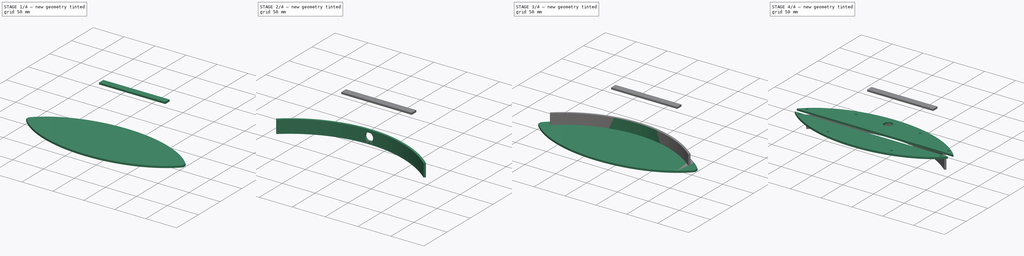
[diagram: build sequence overview — one tinted view per stage of 4, left to right]
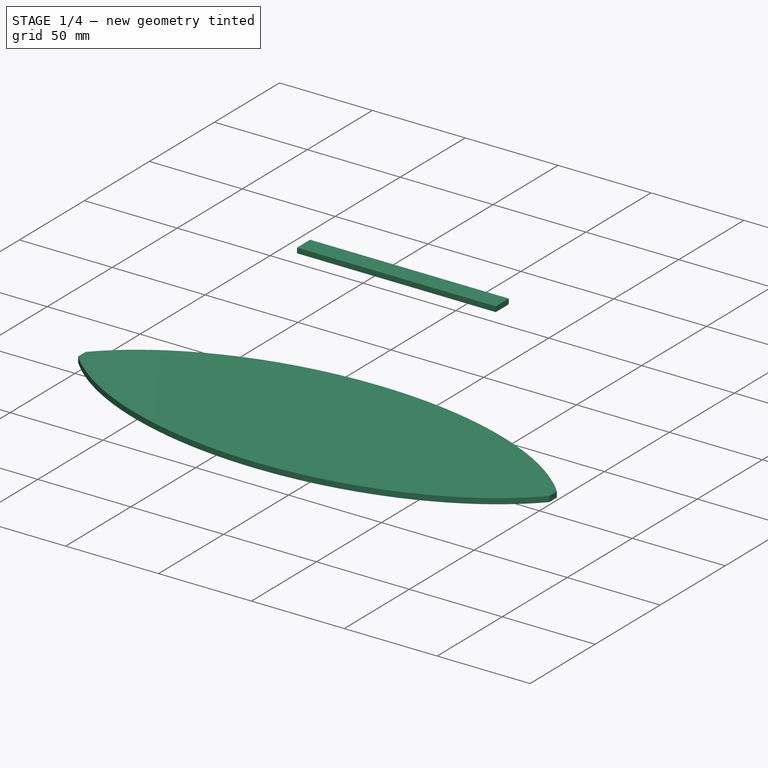
[diagram: stage 1 of 4 — iso view after this stage's code; geometry added in this stage tinted green]
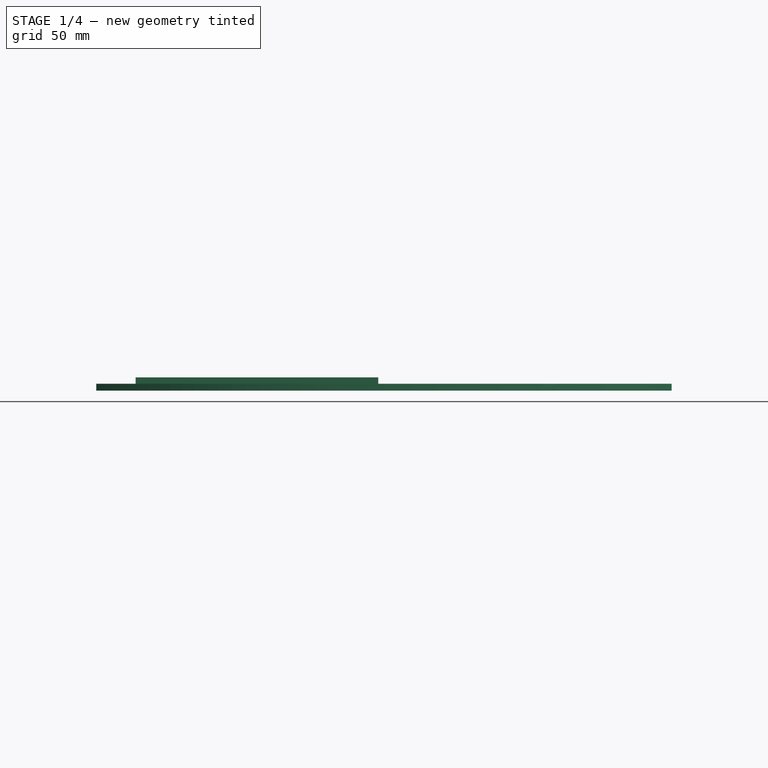
[diagram: stage 1 of 4 — front view after this stage's code; geometry added in this stage tinted green]
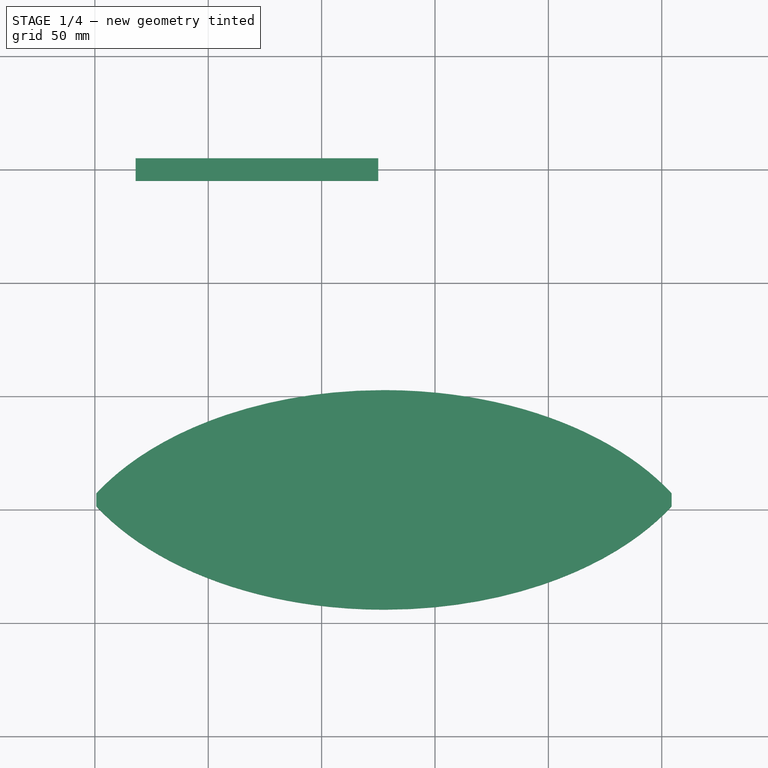
[diagram: stage 1 of 4 — top view after this stage's code; geometry added in this stage tinted green]
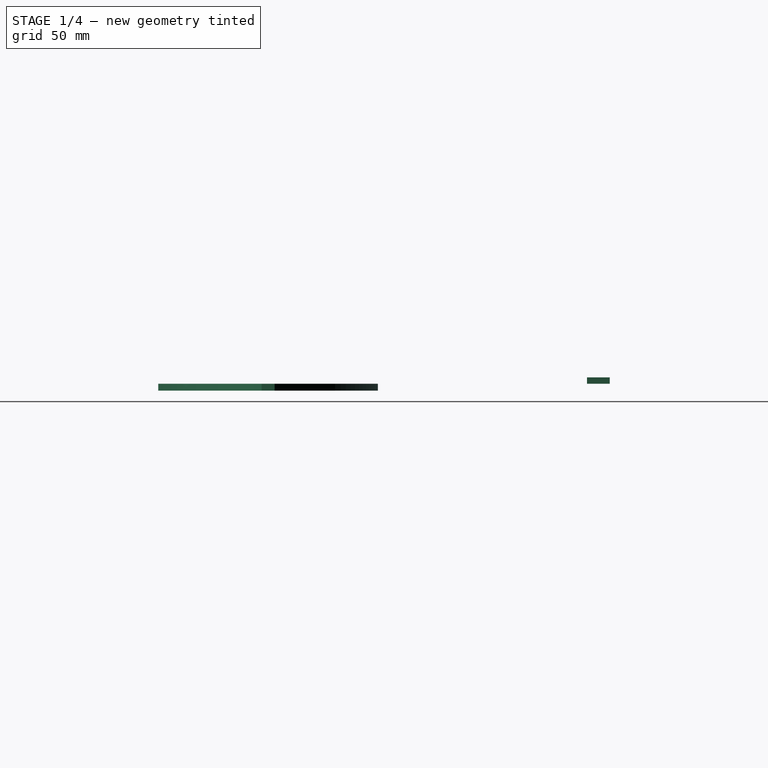
[diagram: stage 1 of 4 — right view after this stage's code; geometry added in this stage tinted green]
FCSTD DOCUMENT  (FreeCAD 0.19R22611 (Git))
Label: halo_base
License: All rights reserved
LicenseURL: http://en.wikipedia.org/wiki/All_rights_reserved
objects: Part::Feature×104, Sketcher::SketchObject×23, PartDesign::Pad×8, PartDesign::Body×7, App::Part×7, PartDesign::Pocket×4, PartDesign::ShapeBinder×3, Part::Cut×1, PartDesign::CoordinateSystem×1
note: 163 computed .brp shape members not serialized (recipe doc carries the construction recipe); baked Part::Feature solids carry a one-line shape summary decoded from their .brp

FEATURE [PartDesign::Body] Body006  label="vert_wall_frnt"
  Group = -> [Sketch042,ShapeBinder001,Pad003]
  Origin = -> Origin006
  Placement = pos=(0,0,3) rot=(0,0,1;0rad)
  Tip = -> Pad003
FEATURE [Sketcher::SketchObject] Sketch043
  sketch-geometry (6):
    g0: BSplineCurve PolesCount=3 KnotsCount=2 Degree=2 IsPeriodic=0
    g1: BSplineCurve PolesCount=3 KnotsCount=2 Degree=2 IsPeriodic=0
    g2: BSplineCurve PolesCount=3 KnotsCount=2 Degree=2 IsPeriodic=0
    g3: BSplineCurve PolesCount=3 KnotsCount=2 Degree=2 IsPeriodic=0
    g4: LineSegment StartX=0.646382 StartY=-142.768 StartZ=0 EndX=0.646382 EndY=-148.526 EndZ=0
    g5: LineSegment StartX=254.388 StartY=-142.768 StartZ=0 EndX=254.388 EndY=-148.526 EndZ=0
  constraints (10):
    c: Coincident(g0,g1)
    c: Coincident(g2,g3)
    c: Coincident(g4,g3)
    c: Coincident(g4,g1)
    c: Coincident(g5,g2)
    c: Coincident(g5,g0)
    c: Block(g3)
    c: Block(g2)
    c: Block(g0)
    c: Block(g1)
FEATURE [PartDesign::Pad] Pad004
  Direction = (1,1,1)
  Length = 3
  Length2 = 100
  Profile = -> Sketch043
  Type = 0
FEATURE [PartDesign::Body] Body007  label="vert_wall_back"
  Group = -> [Sketch045,ShapeBinder002,Pad005,Sketch046,Pocket003]
  Origin = -> Origin007
  Placement = pos=(255.035,-290.95,3) rot=(0,0,1;3.14159rad)
  Tip = -> Pocket003
FEATURE [Sketcher::SketchObject] Sketch047
  MapMode = 5
  Placement = pos=(0,0,0) rot=(1,0,0;1.5708rad)
  Support = -> [XZ_Plane010]
  sketch-geometry (4):
    g0: LineSegment StartX=18 StartY=5.8 StartZ=0 EndX=125 EndY=5.8 EndZ=0
    g1: LineSegment StartX=125 StartY=5.8 StartZ=0 EndX=125 EndY=3 EndZ=0
    g2: LineSegment StartX=125 StartY=3 StartZ=0 EndX=18 EndY=3 EndZ=0
    g3: LineSegment StartX=18 StartY=3 StartZ=0 EndX=18 EndY=5.8 EndZ=0
  constraints (12):
    c: Coincident(g0,g1)
    c: Coincident(g1,g2)
    c: Coincident(g2,g3)
    c: Coincident(g3,g0)
    c: Horizontal(g0)
    c: Horizontal(g2)
    c: Vertical(g1)
    c: Vertical(g3)
    c: DistanceY(g1,g1) = 2.8
    c: DistanceX(g2,g2) = 107
    c: DistanceX(g-1,g0) = 18
    c: DistanceY(g-1,g2) = 3
FEATURE [PartDesign::Pad] Pad006
  Direction = (1,1,1)
  Length = 10
  Length2 = 100
  Midplane = true
  Placement = pos=(0,0,0) rot=(1,0,0;1.5708rad)
  Profile = -> Sketch047
  Type = 0
FEATURE [PartDesign::Body] Body008  label="LED_support_left"
  Group = -> [Sketch047,Pad006]
  Origin = -> Origin010
  Placement = pos=(0,-145,0) rot=(0,0,1;0rad)
  Tip = -> Pad006
FEATURE [Sketcher::SketchObject] Sketch048
  MapMode = 5
  Placement = pos=(0,0,0) rot=(1,0,0;1.5708rad)
  Support = -> [XZ_Plane011]
  sketch-geometry (4):
    g0: LineSegment StartX=18 StartY=5.8 StartZ=0 EndX=125 EndY=5.8 EndZ=0
    g1: LineSegment StartX=125 StartY=5.8 StartZ=0 EndX=125 EndY=3 EndZ=0
    g2: LineSegment StartX=125 StartY=3 StartZ=0 EndX=18 EndY=3 EndZ=0
    g3: LineSegment StartX=18 StartY=3 StartZ=0 EndX=18 EndY=5.8 EndZ=0
  constraints (12):
    c: Coincident(g0,g1)
    c: Coincident(g1,g2)
    c: Coincident(g2,g3)
    c: Coincident(g3,g0)
    c: Horizontal(g0)
    c: Horizontal(g2)
    c: Vertical(g1)
    c: Vertical(g3)
    c: DistanceY(g1,g1) = 2.8
    c: DistanceX(g2,g2) = 107
    c: DistanceX(g-1,g0) = 18
    c: DistanceY(g-1,g2) = 3
FEATURE [PartDesign::Pad] Pad007
  Direction = (1,1,1)
  Length = 10
  Length2 = 100
  Midplane = true
  Placement = pos=(0,0,0) rot=(1,0,0;1.5708rad)
  Profile = -> Sketch048
  Type = 0
FEATURE [PartDesign::Body] Body009  label="LED_support_right"
  Group = -> [Sketch048,Pad007]
  Origin = -> Origin011
  Placement = pos=(112,-145,0) rot=(0,0,1;0rad)
  Tip = -> Pad007
FEATURE [PartDesign::CoordinateSystem] Local_CS_a344
  AttacherType = Attacher::AttachEngine3D
FEATURE [Part::Feature] Pcb_a344
  shape: bbox 253.7 x 96.84 x 1.6 mm, 122 faces (baked)
FEATURE [Sketcher::SketchObject] PCB_Sketch_a344
  sketch-geometry (26):
    g0: LineSegment StartX=126.872 StartY=2.879 StartZ=0 EndX=126.871 EndY=-2.87986 EndZ=0
    g1: LineSegment StartX=-126.871 StartY=2.87986 StartZ=0 EndX=-126.872 EndY=-2.879 EndZ=0
    g2: LineSegment StartX=1.391 StartY=-44.158 StartZ=0 EndX=-1.391 EndY=-44.158 EndZ=0
    g3: LineSegment StartX=-1.391 StartY=-44.158 StartZ=0 EndX=-1.391 EndY=-46.94 EndZ=0
    g4: LineSegment StartX=-1.391 StartY=-46.94 StartZ=0 EndX=1.391 EndY=-46.94 EndZ=0
    g5: LineSegment StartX=1.391 StartY=-46.94 StartZ=0 EndX=1.391 EndY=-44.158 EndZ=0
    g6: LineSegment StartX=1.391 StartY=46.94 StartZ=0 EndX=-1.391 EndY=46.94 EndZ=0
    g7: LineSegment StartX=-1.391 StartY=46.94 StartZ=0 EndX=-1.391 EndY=44.158 EndZ=0
    g8: LineSegment StartX=-1.391 StartY=44.158 StartZ=0 EndX=1.391 EndY=44.158 EndZ=0
    g9: LineSegment StartX=1.391 StartY=44.158 StartZ=0 EndX=1.391 EndY=46.94 EndZ=0
    g10: ArcOfCircle CenterX=28.353 CenterY=-93.123 CenterZ=0 NormalX=0 NormalY=0 NormalZ=1 AngleXU=0 Radius=137.559 StartAngle=0.772459 EndAngle=1.29154
    g11: ArcOfCircle CenterX=3.62076e-08 CenterY=-192 CenterZ=0 NormalX=0 NormalY=0 NormalZ=1 AngleXU=0 Radius=240.421 StartAngle=1.29154 EndAngle=1.5708
    g12: ArcOfCircle CenterX=3.48198e-08 CenterY=-192 CenterZ=0 NormalX=0 NormalY=0 NormalZ=1 AngleXU=0 Radius=240.421 StartAngle=1.5708 EndAngle=1.85005
    g13: ArcOfCircle CenterX=28.353 CenterY=93.123 CenterZ=0 NormalX=0 NormalY=0 NormalZ=1 AngleXU=0 Radius=137.559 StartAngle=4.99164 EndAngle=5.51072
    g14: ArcOfCircle CenterX=-3.48198e-08 CenterY=192 CenterZ=0 NormalX=0 NormalY=0 NormalZ=1 AngleXU=0 Radius=240.421 StartAngle=4.71239 EndAngle=4.99164
    g15: ArcOfCircle CenterX=-28.353 CenterY=-93.123 CenterZ=0 NormalX=0 NormalY=0 NormalZ=1 AngleXU=0 Radius=137.559 StartAngle=1.85004 EndAngle=2.36912
    g16: ArcOfCircle CenterX=-3.62076e-08 CenterY=192 CenterZ=0 NormalX=0 NormalY=0 NormalZ=1 AngleXU=0 Radius=240.421 StartAngle=4.43313 EndAngle=4.71239
    g17: ArcOfCircle CenterX=-28.353 CenterY=93.123 CenterZ=0 NormalX=0 NormalY=0 NormalZ=1 AngleXU=0 Radius=137.559 StartAngle=3.91405 EndAngle=4.43314
    g18: Circle CenterX=-51.586 CenterY=-32.859 CenterZ=0 NormalX=0 NormalY=0 NormalZ=1 AngleXU=0 Radius=1.717
    g19: Circle CenterX=-114.683 CenterY=-9.475 CenterZ=0 NormalX=0 NormalY=0 NormalZ=1 AngleXU=0 Radius=1.717
    g20: Circle CenterX=51.586 CenterY=-32.859 CenterZ=0 NormalX=0 NormalY=0 NormalZ=1 AngleXU=0 Radius=1.716
    g21: Circle CenterX=114.683 CenterY=-9.475 CenterZ=0 NormalX=0 NormalY=0 NormalZ=1 AngleXU=0 Radius=1.717
    g22: Circle CenterX=-114.683 CenterY=9.475 CenterZ=0 NormalX=0 NormalY=0 NormalZ=1 AngleXU=0 Radius=1.717
    g23: Circle CenterX=-51.586 CenterY=32.859 CenterZ=0 NormalX=0 NormalY=0 NormalZ=1 AngleXU=0 Radius=1.717
    g24: Circle CenterX=114.683 CenterY=9.475 CenterZ=0 NormalX=0 NormalY=0 NormalZ=1 AngleXU=0 Radius=1.717
    g25: Circle CenterX=51.586 CenterY=32.859 CenterZ=0 NormalX=0 NormalY=0 NormalZ=1 AngleXU=0 Radius=1.716
  constraints (18):
    c: Coincident(g1,g17)
    c: Coincident(g15,g1)
    c: Coincident(g17,g16)
    c: Coincident(g12,g15)
    c: Coincident(g3,g4)
    c: Coincident(g2,g3)
    c: Coincident(g7,g8)
    c: Coincident(g7,g6)
    c: Coincident(g16,g14)
    c: Coincident(g11,g12)
    c: Coincident(g5,g4)
    c: Coincident(g5,g2)
    c: Coincident(g9,g8)
    c: Coincident(g9,g6)
    c: Coincident(g13,g14)
    c: Coincident(g11,g10)
    c: Coincident(g13,g0)
    c: Coincident(g10,g0)
FEATURE [App::Part] Board_Geoms_a344
  Group = -> [Local_CS_a344,Pcb_a344,PCB_Sketch_a344]
  Origin = -> Origin012
FEATURE [Part::Feature] Shape  label="C9_C_0805_2012Metric_5F9F04DD"
  Placement = pos=(26.162,28.448,0) rot=(0,0,-1;1.5708rad)
  shape: bbox 1.25 x 2 x 1.25 mm, 28 faces (baked)
FEATURE [Part::Feature] Shape001  label="R1_R_0805_2012Metric_5F9F6334"
  Placement = pos=(43.18,23.876,0) rot=(0,0,1;3.14159rad)
  shape: bbox 2 x 1.2 x 0.45 mm, 26 faces (baked)
FEATURE [Part::Feature] Shape002  label="P5_PinHeader_1x04_P254mm_Vertical_SMD_Pin1Left_5F9E64E9"
  Placement = pos=(0,-28.829,0) rot=(0,0,1;1.5708rad)
  shape: bbox 10.16 x 5 x 9.3 mm, 112 faces (baked)
FEATURE [Part::Feature] Shape003  label="C11_C_0805_2012Metric_5F9E15B0"
  Placement = pos=(-96.8756,-8.382,0) rot=(0,0,1;1.5708rad)
  shape: bbox 1.25 x 2 x 1.25 mm, 28 faces (baked)
FEATURE [Part::Feature] Shape004  label="C12_C_0805_2012Metric_5F9E23D7"
  Placement = pos=(-58.7248,-8.382,0) rot=(0,0,1;1.5708rad)
  shape: bbox 1.25 x 2 x 1.25 mm, 28 faces (baked)
FEATURE [Part::Feature] Shape005  label="C13_C_0805_2012Metric_5F9E15D2"
  Placement = pos=(-20.6756,-8.382,0) rot=(0,0,1;1.5708rad)
  shape: bbox 1.25 x 2 x 1.25 mm, 28 faces (baked)
FEATURE [Part::Feature] Shape006  label="C14_C_0805_2012Metric_5F9E15E3"
  Placement = pos=(17.4244,-8.382,0) rot=(0,0,1;1.5708rad)
  shape: bbox 1.25 x 2 x 1.25 mm, 28 faces (baked)
FEATURE [Part::Feature] Shape007  label="C15_C_0805_2012Metric_5F9E15F4"
  Placement = pos=(55.6006,-8.382,0) rot=(0,0,1;1.5708rad)
  shape: bbox 1.25 x 2 x 1.25 mm, 28 faces (baked)
FEATURE [Part::Feature] Shape008  label="C16_C_0805_2012Metric_5F9F8A7C"
  Placement = pos=(93.6244,-8.382,0) rot=(0,0,1;1.5708rad)
  shape: bbox 1.25 x 2 x 1.25 mm, 28 faces (baked)
FEATURE [Part::Feature] Shape009  label="C1_CP_Elec_4x58_5F9F042F"
  Placement = pos=(44.704,10.795,0) rot=(0,0,-1;1.5708rad)
  shape: bbox 5.462 x 5.738 x 5.8 mm, 41 faces (baked)
FEATURE [Part::Feature] Shape010  label="C2_C_0805_2012Metric_5F9F0456"
  Placement = pos=(56.261,27.051,0) rot=(0,0,1;1.5708rad)
  shape: bbox 1.25 x 2 x 1.25 mm, 28 faces (baked)
FEATURE [Part::Feature] Shape011  label="C3_C_0805_2012Metric_5F9F0466"
  Placement = pos=(41.021,11.684,0) rot=(0,0,-1;1.5708rad)
  shape: bbox 1.25 x 2 x 1.25 mm, 28 faces (baked)
FEATURE [Part::Feature] Shape012  label="C4_C_0805_2012Metric_5F9F0476"
  Placement = pos=(38.481,11.684,0) rot=(0,0,-1;1.5708rad)
  shape: bbox 1.25 x 2 x 1.25 mm, 28 faces (baked)
FEATURE [Part::Feature] Shape013  label="C5_C_0805_2012Metric_5F9F0486"
  Placement = pos=(53.721,9.525,0) rot=(0,0,1;1.5708rad)
  shape: bbox 1.25 x 2 x 1.25 mm, 28 faces (baked)
FEATURE [Part::Feature] Shape014  label="C6_C_0805_2012Metric_5F9F0496"
  Placement = pos=(62.357,9.525,0) rot=(0,0,1;1.5708rad)
  shape: bbox 1.25 x 2 x 1.25 mm, 28 faces (baked)
FEATURE [Part::Feature] Shape015  label="C7_CP_Elec_4x58_5F9F04A6"
  Placement = pos=(-16.002,18.034,0) rot=(0,0,-1;1.5708rad)
  shape: bbox 5.462 x 5.738 x 5.8 mm, 41 faces (baked)
FEATURE [Part::Feature] Shape016  label="C8_C_0805_2012Metric_5F9F04CD"
  Placement = pos=(-30.099,19.939,0) rot=(0,0,1;1.5708rad)
  shape: bbox 1.25 x 2 x 1.25 mm, 28 faces (baked)
FEATURE [Part::Feature] Shape017  label="C10_C_0805_2012Metric_5F9F04ED"
  Placement = pos=(76.073,18.288,0) rot=(0,0,1;1.5708rad)
  shape: bbox 1.25 x 2 x 1.25 mm, 28 faces (baked)
FEATURE [Part::Feature] Shape018  label="D1_LED_WS2812B_PLCC4_50x50mm_P32mm_5F9F04FD"
  Placement = pos=(-110.49,0,0) rot=(0,0,1;1.5708rad)
  shape: bbox 5 x 5.4 x 1.6 mm, 68 faces (baked)
FEATURE [Part::Feature] Shape019  label="D2_LED_WS2812B_PLCC4_50x50mm_P32mm_5F9F0514"
  Placement = pos=(-102.87,0,0) rot=(0,0,1;1.5708rad)
  shape: bbox 5 x 5.4 x 1.6 mm, 68 faces (baked)
FEATURE [Part::Feature] Shape020  label="D3_LED_WS2812B_PLCC4_50x50mm_P32mm_5F9F052B"
  Placement = pos=(-95.25,0,0) rot=(0,0,1;1.5708rad)
  shape: bbox 5 x 5.4 x 1.6 mm, 68 faces (baked)
FEATURE [Part::Feature] Shape021  label="D4_LED_WS2812B_PLCC4_50x50mm_P32mm_5F9F0542"
  Placement = pos=(-87.63,0,0) rot=(0,0,1;1.5708rad)
  shape: bbox 5 x 5.4 x 1.6 mm, 68 faces (baked)
FEATURE [Part::Feature] Shape022  label="D5_LED_WS2812B_PLCC4_50x50mm_P32mm_5F9F0559"
  Placement = pos=(-80.01,0,0) rot=(0,0,1;1.5708rad)
  shape: bbox 5 x 5.4 x 1.6 mm, 68 faces (baked)
FEATURE [Part::Feature] Shape023  label="D6_LED_WS2812B_PLCC4_50x50mm_P32mm_5F9F0570"
  Placement = pos=(-72.39,0,0) rot=(0,0,1;1.5708rad)
  shape: bbox 5 x 5.4 x 1.6 mm, 68 faces (baked)
FEATURE [Part::Feature] Shape024  label="D7_LED_WS2812B_PLCC4_50x50mm_P32mm_5F9F0587"
  Placement = pos=(-64.77,0,0) rot=(0,0,1;1.5708rad)
  shape: bbox 5 x 5.4 x 1.6 mm, 68 faces (baked)
FEATURE [Part::Feature] Shape025  label="D8_LED_WS2812B_PLCC4_50x50mm_P32mm_5F9F059E"
  Placement = pos=(-57.15,0,0) rot=(0,0,1;1.5708rad)
  shape: bbox 5 x 5.4 x 1.6 mm, 68 faces (baked)
FEATURE [Part::Feature] Shape026  label="D9_LED_WS2812B_PLCC4_50x50mm_P32mm_5F9F05B5"
  Placement = pos=(-49.53,0,0) rot=(0,0,1;1.5708rad)
  shape: bbox 5 x 5.4 x 1.6 mm, 68 faces (baked)
FEATURE [Part::Feature] Shape027  label="D10_LED_WS2812B_PLCC4_50x50mm_P32mm_5F9F05CC"
  Placement = pos=(-41.91,0,0) rot=(0,0,1;1.5708rad)
  shape: bbox 5 x 5.4 x 1.6 mm, 68 faces (baked)
FEATURE [Part::Feature] Shape028  label="D11_LED_WS2812B_PLCC4_50x50mm_P32mm_5F9F05E3"
  Placement = pos=(-34.29,0,0) rot=(0,0,1;1.5708rad)
  shape: bbox 5 x 5.4 x 1.6 mm, 68 faces (baked)
FEATURE [Part::Feature] Shape029  label="D12_LED_WS2812B_PLCC4_50x50mm_P32mm_5F9F05FA"
  Placement = pos=(-26.67,0,0) rot=(0,0,1;1.5708rad)
  shape: bbox 5 x 5.4 x 1.6 mm, 68 faces (baked)
FEATURE [Part::Feature] Shape030  label="D13_LED_WS2812B_PLCC4_50x50mm_P32mm_5F9F0611"
  Placement = pos=(-19.05,0,0) rot=(0,0,1;1.5708rad)
  shape: bbox 5 x 5.4 x 1.6 mm, 68 faces (baked)
FEATURE [Part::Feature] Shape031  label="D14_LED_WS2812B_PLCC4_50x50mm_P32mm_5F9F0628"
  Placement = pos=(-11.43,0,0) rot=(0,0,1;1.5708rad)
  shape: bbox 5 x 5.4 x 1.6 mm, 68 faces (baked)
FEATURE [Part::Feature] Shape032  label="D15_LED_WS2812B_PLCC4_50x50mm_P32mm_5F9F063F"
  Placement = pos=(-3.81,0,0) rot=(0,0,1;1.5708rad)
  shape: bbox 5 x 5.4 x 1.6 mm, 68 faces (baked)
FEATURE [Part::Feature] Shape033  label="D16_LED_WS2812B_PLCC4_50x50mm_P32mm_5F9F0656"
  Placement = pos=(3.81,0,0) rot=(0,0,1;1.5708rad)
  shape: bbox 5 x 5.4 x 1.6 mm, 68 faces (baked)
FEATURE [Part::Feature] Shape034  label="D17_LED_WS2812B_PLCC4_50x50mm_P32mm_5F9F066D"
  Placement = pos=(11.43,0,0) rot=(0,0,1;1.5708rad)
  shape: bbox 5 x 5.4 x 1.6 mm, 68 faces (baked)
FEATURE [Part::Feature] Shape035  label="D18_LED_WS2812B_PLCC4_50x50mm_P32mm_5F9F0684"
  Placement = pos=(19.05,0,0) rot=(0,0,1;1.5708rad)
  shape: bbox 5 x 5.4 x 1.6 mm, 68 faces (baked)
FEATURE [Part::Feature] Shape036  label="D19_LED_WS2812B_PLCC4_50x50mm_P32mm_5F9F069B"
  Placement = pos=(26.67,0,0) rot=(0,0,1;1.5708rad)
  shape: bbox 5 x 5.4 x 1.6 mm, 68 faces (baked)
FEATURE [Part::Feature] Shape037  label="D20_LED_WS2812B_PLCC4_50x50mm_P32mm_5F9F06B2"
  Placement = pos=(34.29,0,0) rot=(0,0,1;1.5708rad)
  shape: bbox 5 x 5.4 x 1.6 mm, 68 faces (baked)
FEATURE [Part::Feature] Shape038  label="D21_LED_WS2812B_PLCC4_50x50mm_P32mm_5F9F06C9"
  Placement = pos=(41.91,0,0) rot=(0,0,1;1.5708rad)
  shape: bbox 5 x 5.4 x 1.6 mm, 68 faces (baked)
FEATURE [Part::Feature] Shape039  label="D22_LED_WS2812B_PLCC4_50x50mm_P32mm_5F9F06E0"
  Placement = pos=(49.53,0,0) rot=(0,0,1;1.5708rad)
  shape: bbox 5 x 5.4 x 1.6 mm, 68 faces (baked)
FEATURE [Part::Feature] Shape040  label="D23_LED_WS2812B_PLCC4_50x50mm_P32mm_5F9F06F7"
  Placement = pos=(57.15,0,0) rot=(0,0,1;1.5708rad)
  shape: bbox 5 x 5.4 x 1.6 mm, 68 faces (baked)
FEATURE [Part::Feature] Shape041  label="D24_LED_WS2812B_PLCC4_50x50mm_P32mm_5F9F070E"
  Placement = pos=(64.77,0,0) rot=(0,0,1;1.5708rad)
  shape: bbox 5 x 5.4 x 1.6 mm, 68 faces (baked)
FEATURE [Part::Feature] Shape042  label="D25_LED_WS2812B_PLCC4_50x50mm_P32mm_5F9F0725"
  Placement = pos=(72.39,0,0) rot=(0,0,1;1.5708rad)
  shape: bbox 5 x 5.4 x 1.6 mm, 68 faces (baked)
FEATURE [Part::Feature] Shape043  label="D26_LED_WS2812B_PLCC4_50x50mm_P32mm_5F9F073C"
  Placement = pos=(80.01,0,0) rot=(0,0,1;1.5708rad)
  shape: bbox 5 x 5.4 x 1.6 mm, 68 faces (baked)
FEATURE [Part::Feature] Shape044  label="D27_LED_WS2812B_PLCC4_50x50mm_P32mm_5F9F0753"
  Placement = pos=(87.63,0,0) rot=(0,0,1;1.5708rad)
  shape: bbox 5 x 5.4 x 1.6 mm, 68 faces (baked)
FEATURE [Part::Feature] Shape045  label="D28_LED_WS2812B_PLCC4_50x50mm_P32mm_5F9F076A"
  Placement = pos=(95.25,0,0) rot=(0,0,1;1.5708rad)
  shape: bbox 5 x 5.4 x 1.6 mm, 68 faces (baked)
FEATURE [Part::Feature] Shape046  label="D29_LED_WS2812B_PLCC4_50x50mm_P32mm_5F9F0781"
  Placement = pos=(102.87,0,0) rot=(0,0,1;1.5708rad)
  shape: bbox 5 x 5.4 x 1.6 mm, 68 faces (baked)
FEATURE [Part::Feature] Shape047  label="D30_LED_WS2812B_PLCC4_50x50mm_P32mm_5F9F0798"
  Placement = pos=(110.49,0,0) rot=(0,0,1;1.5708rad)
  shape: bbox 5 x 5.4 x 1.6 mm, 68 faces (baked)
FEATURE [Part::Feature] Shape048  label="D31_D_SMB_5F9F07AF"
  Placement = pos=(5.588,18.034,0) rot=(0,0,1;3.14159rad)
  shape: bbox 5.3 x 3.55 x 2.15 mm, 41 faces (baked)
FEATURE [Part::Feature] Shape049  label="D32_D_SMB_5F9F07CA"
  Placement = pos=(-7.239,18.034,0) rot=(0,0,1;0rad)
  shape: bbox 5.3 x 3.55 x 2.15 mm, 41 faces (baked)
FEATURE [Part::Feature] Shape050  label="D33_LED_0805_2012Metric_5F9F07E5"
  Placement = pos=(-32.385,19.939,0) rot=(0,0,-1;1.5708rad)
  shape: bbox 1.25 x 2 x 1.1 mm, 50 faces (baked)
FEATURE [Part::Feature] Shape051  label="D34_LED_0805_2012Metric_5F9F07F7"
  Placement = pos=(60.579,27.051,0) rot=(0,0,1;1.5708rad)
  shape: bbox 1.25 x 2 x 1.1 mm, 50 faces (baked)
FEATURE [Part::Feature] Shape052  label="J1_PinHeader_1x08_P254mm_Vertical_SMD_Pin1Left_5F9F0809"
  Placement = pos=(11.303,25.273,0) rot=(0,0,1;1.5708rad)
  shape: bbox 20.32 x 5 x 9.3 mm, 220 faces (baked)
FEATURE [Part::Feature] Part__Feature031  label="CUI_DEVICES_PJ_036AH_SMT_TR004_cp004_cp"
  shape: bbox 9 x 14.5 x 12.6 mm, 55 faces (baked)
FEATURE [Part::Feature] Part__Feature032  label="CUI_DEVICES_PJ_036AH_SMT_TR004_cp004_cp001"
  shape: bbox 3.6 x 7.5 x 4.12 mm, 24 faces (baked)
FEATURE [Part::Feature] Part__Feature033  label="CUI_DEVICES_PJ_036AH_SMT_TR004_cp004_cp002"
  shape: bbox 3.6 x 4.6 x 1.15 mm, 16 faces (baked)
FEATURE [Part::Feature] Part__Feature034  label="CUI_DEVICES_PJ_036AH_SMT_TR004_cp004_cp003"
  shape: bbox 4.8 x 3.55 x 9 mm, 25 faces (baked)
FEATURE [App::Part] CUI_DEVICES_PJ_036AH_SMT_TR004_cp004_cp  label="J3_CUI_DEVICES_PJ_036AH_SMT_TR004_cp004_cp004_5F9F0873"
  Group = -> [Part__Feature031,Part__Feature032,Part__Feature033,Part__Feature034]
  Origin = -> Origin013
  Placement = pos=(-8.89,32.385,0) rot=(0,0,1;3.14159rad)
FEATURE [Part::Feature] Shape053  label="P1_PinHeader_1x04_P254mm_Vertical_SMD_Pin1Left_5F9F0895"
  Placement = pos=(-83.312,12.7,0) rot=(0,0,1;0rad)
  shape: bbox 5 x 10.16 x 9.3 mm, 112 faces (baked)
FEATURE [Part::Feature] Shape054  label="P2_PinHeader_1x06_P254mm_Vertical_SMD_Pin1Left_5F9F08BB"
  Placement = pos=(32.512,34.417,0) rot=(0,0,-1;1.5708rad)
  shape: bbox 15.24 x 5 x 9.3 mm, 166 faces (baked)
FEATURE [Part::Feature] Shape055  label="P3_PinHeader_2x03_P254mm_Vertical_SMD_5F9F08EB"
  Placement = pos=(68.453,18.161,0) rot=(0,0,1;0rad)
  shape: bbox 7.54 x 7.62 x 9.3 mm, 148 faces (baked)
FEATURE [Part::Feature] Shape056  label="P4_PinHeader_1x04_P254mm_Vertical_SMD_Pin1Left_5F9F091B"
  Placement = pos=(87.63,12.7,0) rot=(0,0,1;0rad)
  shape: bbox 5 x 10.16 x 9.3 mm, 112 faces (baked)
FEATURE [Part::Feature] Shape057  label="R2_R_0805_2012Metric_5F9F0951"
  Placement = pos=(43.18,20.066,0) rot=(0,0,1;0rad)
  shape: bbox 2 x 1.2 x 0.45 mm, 26 faces (baked)
FEATURE [Part::Feature] Shape058  label="R3_R_0805_2012Metric_5F9F0961"
  Placement = pos=(43.18,17.907,0) rot=(0,0,1;0rad)
  shape: bbox 2 x 1.2 x 0.45 mm, 26 faces (baked)
FEATURE [Part::Feature] Shape059  label="R4_R_0805_2012Metric_5F9F0971"
  Placement = pos=(49.784,9.652,0) rot=(0,0,1;1.5708rad)
  shape: bbox 1.2 x 2 x 0.45 mm, 26 faces (baked)
FEATURE [Part::Feature] Shape060  label="R5_R_0805_2012Metric_5F9F0981"
  Placement = pos=(2.794,31.369,0) rot=(0,0,-1;1.5708rad)
  shape: bbox 1.2 x 2 x 0.45 mm, 26 faces (baked)
FEATURE [Part::Feature] Shape061  label="R6_R_0805_2012Metric_5F9F0991"
  Placement = pos=(17.145,31.369,0) rot=(0,0,1;1.5708rad)
  shape: bbox 1.2 x 2 x 0.45 mm, 26 faces (baked)
FEATURE [Part::Feature] Shape062  label="R7_R_0805_2012Metric_5F9F09A1"
  Placement = pos=(-30.099,16.129,0) rot=(0,0,-1;1.5708rad)
  shape: bbox 1.2 x 2 x 0.45 mm, 26 faces (baked)
FEATURE [Part::Feature] Shape063  label="R8_R_0805_2012Metric_5F9F09B1"
  Placement = pos=(62.992,27.051,0) rot=(0,0,1;1.5708rad)
  shape: bbox 1.2 x 2 x 0.45 mm, 26 faces (baked)
FEATURE [Part::Feature] Shape064  label="SW1_SW_SPST_PTS645_5F9F0A39[2]"
  Placement = pos=(32.385,25.273,0) rot=(0,0,1;3.14159rad)
  shape: bbox 9 x 6 x 4.3 mm, 97 faces (baked)
FEATURE [Part::Feature] Shape065  label="SW2_PinHeader_1x02_P254mm_Vertical_SMD_Pin1Left_5F9F0A52"
  Placement = pos=(0,-35.56,0) rot=(0,0,1;0rad)
  shape: bbox 5 x 5.08 x 9.3 mm, 58 faces (baked)
FEATURE [Part::Feature] Shape066  label="U1_TQFP_32_7x7mm_P08mm_5F9F0A6E"
  Placement = pos=(53.356,18.329,0) rot=(0,0,1;1.5708rad)
  shape: bbox 9 x 9 x 1.1 mm, 524 faces (baked)
FEATURE [Part::Feature] Shape067  label="U2_SOT_223_5F9F0AA4"
  Placement = pos=(-24.257,18.034,0) rot=(0,0,1;3.14159rad)
  shape: bbox 7 x 6.5 x 1.7 mm, 78 faces (baked)
FEATURE [App::Part] Top_a344
  Group = -> [Shape,Shape001,Shape002,Shape003,Shape004,Shape005,Shape006,Shape007,Shape008,Shape009,Shape010,Shape011,Shape012,Shape013,Shape014,Shape015,Shape016,Shape017,Shape018,Shape019,Shape020,Shape021,Shape022,Shape023,Shape024,Shape025,Shape026,Shape027,Shape028,Shape029,Shape030,Shape031,Shape032,Shape033,Shape034,Shape035,Shape036,Shape037,Shape038,Shape039,Shape040,Shape041,Shape042,Shape043,+25 more]
  Origin = -> Origin003
FEATURE [App::Part] Step_Models_a344
  Group = -> [Top_a344]
  Origin = -> Origin002
FEATURE [App::Part] Board_a344  label="halo"
  Group = -> [Board_Geoms_a344,Step_Models_a344]
  Origin = -> Origin001
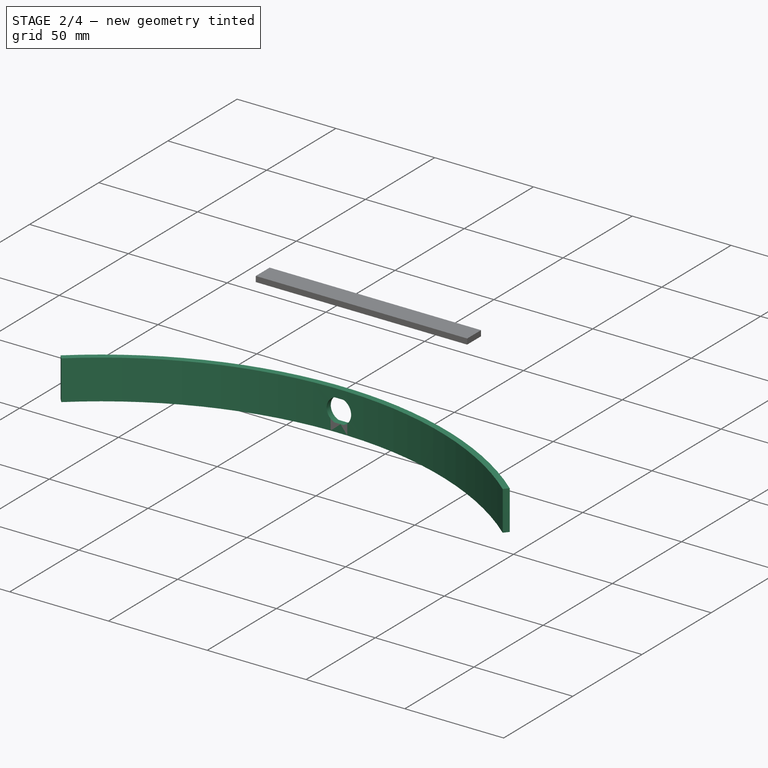
[diagram: stage 2 of 4 — iso view after this stage's code; geometry added in this stage tinted green]
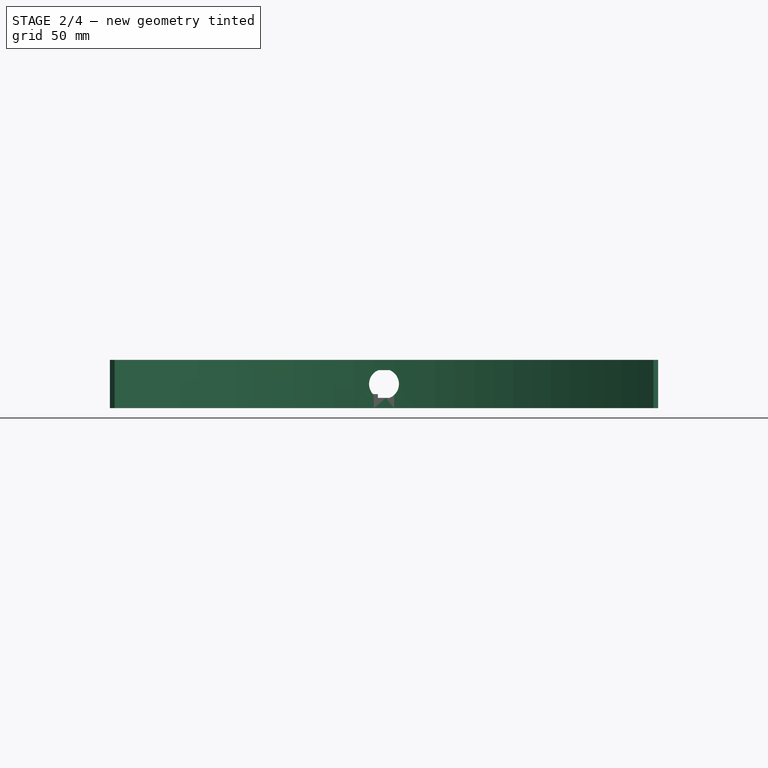
[diagram: stage 2 of 4 — front view after this stage's code; geometry added in this stage tinted green]
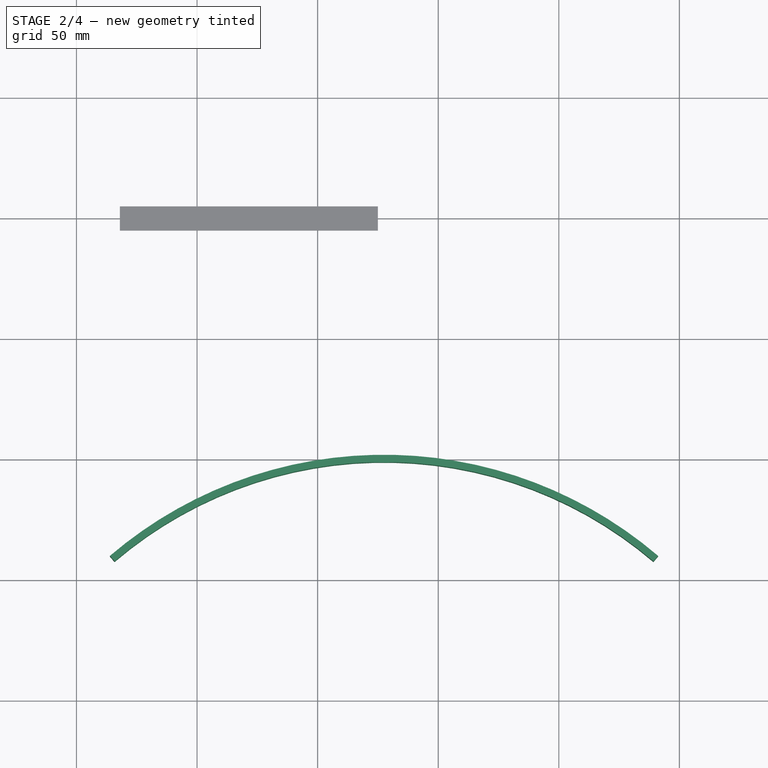
[diagram: stage 2 of 4 — top view after this stage's code; geometry added in this stage tinted green]
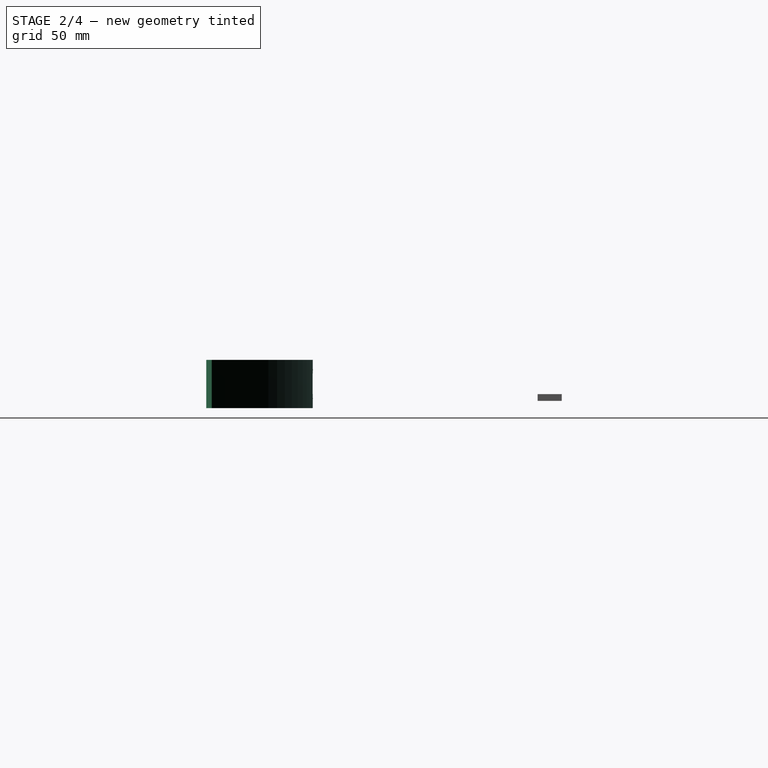
[diagram: stage 2 of 4 — right view after this stage's code; geometry added in this stage tinted green]
FEATURE [Sketcher::SketchObject] Sketch044
  MapMode = 5
  Placement = pos=(0,0,3) rot=(0,0,1;0rad)
  Support = -> [Pad004]
  sketch-geometry (40):
    g0: BSplineCurve PolesCount=2 KnotsCount=2 Degree=1 IsPeriodic=0
    g1: BSplineCurve PolesCount=2 KnotsCount=2 Degree=1 IsPeriodic=0
    g2: BSplineCurve PolesCount=2 KnotsCount=2 Degree=1 IsPeriodic=0
    g3: BSplineCurve PolesCount=2 KnotsCount=2 Degree=1 IsPeriodic=0
    g4: BSplineCurve PolesCount=2 KnotsCount=2 Degree=1 IsPeriodic=0
    g5: BSplineCurve PolesCount=2 KnotsCount=2 Degree=1 IsPeriodic=0
    g6: BSplineCurve PolesCount=2 KnotsCount=2 Degree=1 IsPeriodic=0
    g7: BSplineCurve PolesCount=2 KnotsCount=2 Degree=1 IsPeriodic=0
    g8: BSplineCurve PolesCount=3 KnotsCount=2 Degree=2 IsPeriodic=0
    g9: BSplineCurve PolesCount=3 KnotsCount=2 Degree=2 IsPeriodic=0
    g10: BSplineCurve PolesCount=3 KnotsCount=2 Degree=2 IsPeriodic=0
    g11: BSplineCurve PolesCount=3 KnotsCount=2 Degree=2 IsPeriodic=0
    g12: BSplineCurve PolesCount=3 KnotsCount=2 Degree=2 IsPeriodic=0
    g13: BSplineCurve PolesCount=3 KnotsCount=2 Degree=2 IsPeriodic=0
    g14: BSplineCurve PolesCount=3 KnotsCount=2 Degree=2 IsPeriodic=0
    g15: BSplineCurve PolesCount=3 KnotsCount=2 Degree=2 IsPeriodic=0
    g16: BSplineCurve PolesCount=3 KnotsCount=2 Degree=2 IsPeriodic=0
    g17: BSplineCurve PolesCount=3 KnotsCount=2 Degree=2 IsPeriodic=0
    g18: BSplineCurve PolesCount=3 KnotsCount=2 Degree=2 IsPeriodic=0
    g19: BSplineCurve PolesCount=3 KnotsCount=2 Degree=2 IsPeriodic=0
    g20: BSplineCurve PolesCount=3 KnotsCount=2 Degree=2 IsPeriodic=0
    g21: BSplineCurve PolesCount=3 KnotsCount=2 Degree=2 IsPeriodic=0
    g22: BSplineCurve PolesCount=3 KnotsCount=2 Degree=2 IsPeriodic=0
    g23: BSplineCurve PolesCount=3 KnotsCount=2 Degree=2 IsPeriodic=0
    g24: BSplineCurve PolesCount=3 KnotsCount=2 Degree=2 IsPeriodic=0
    g25: BSplineCurve PolesCount=3 KnotsCount=2 Degree=2 IsPeriodic=0
    g26: BSplineCurve PolesCount=3 KnotsCount=2 Degree=2 IsPeriodic=0
    g27: BSplineCurve PolesCount=3 KnotsCount=2 Degree=2 IsPeriodic=0
    g28: BSplineCurve PolesCount=3 KnotsCount=2 Degree=2 IsPeriodic=0
    g29: BSplineCurve PolesCount=3 KnotsCount=2 Degree=2 IsPeriodic=0
    g30: BSplineCurve PolesCount=3 KnotsCount=2 Degree=2 IsPeriodic=0
    g31: BSplineCurve PolesCount=3 KnotsCount=2 Degree=2 IsPeriodic=0
    g32: BSplineCurve PolesCount=3 KnotsCount=2 Degree=2 IsPeriodic=0
    g33: BSplineCurve PolesCount=3 KnotsCount=2 Degree=2 IsPeriodic=0
    g34: BSplineCurve PolesCount=3 KnotsCount=2 Degree=2 IsPeriodic=0
    g35: BSplineCurve PolesCount=3 KnotsCount=2 Degree=2 IsPeriodic=0
    g36: BSplineCurve PolesCount=3 KnotsCount=2 Degree=2 IsPeriodic=0
    g37: BSplineCurve PolesCount=3 KnotsCount=2 Degree=2 IsPeriodic=0
    g38: BSplineCurve PolesCount=3 KnotsCount=2 Degree=2 IsPeriodic=0
    g39: BSplineCurve PolesCount=3 KnotsCount=2 Degree=2 IsPeriodic=0
  constraints (80):
    c: Coincident(g0,g1)
    c: Coincident(g1,g2)
    c: Coincident(g2,g3)
    c: Coincident(g3,g0)
    c: Coincident(g4,g5)
    c: Coincident(g5,g6)
    c: Coincident(g6,g7)
    c: Coincident(g7,g4)
    c: Coincident(g8,g9)
    c: Coincident(g9,g10)
    c: Coincident(g10,g11)
    c: Coincident(g11,g8)
    c: Coincident(g12,g13)
    c: Coincident(g13,g14)
    c: Coincident(g14,g15)
    c: Coincident(g15,g12)
    c: Coincident(g16,g17)
    c: Coincident(g17,g18)
    c: Coincident(g18,g19)
    c: Coincident(g19,g16)
    c: Coincident(g20,g21)
    c: Coincident(g21,g22)
    c: Coincident(g22,g23)
    c: Coincident(g23,g20)
    c: Coincident(g24,g25)
    c: Coincident(g25,g26)
    c: Coincident(g26,g27)
    c: Coincident(g27,g24)
    c: Coincident(g28,g29)
    c: Coincident(g29,g30)
    c: Coincident(g30,g31)
    c: Coincident(g31,g28)
    c: Coincident(g32,g33)
    c: Coincident(g33,g34)
    c: Coincident(g34,g35)
    c: Coincident(g35,g32)
    c: Coincident(g36,g37)
    c: Coincident(g37,g38)
    c: Coincident(g38,g39)
    c: Coincident(g39,g36)
    c: Block(g19)
    c: Block(g18)
    c: Block(g17)
    c: Block(g16)
    c: Block(g32)
    c: Block(g33)
    c: Block(g34)
    c: Block(g35)
    c: Block(g39)
    c: Block(g36)
    c: Block(g37)
    c: Block(g38)
    c: Block(g23)
    c: Block(g22)
    c: Block(g21)
    c: Block(g20)
    c: Block(g14)
    c: Block(g15)
    c: Block(g12)
    c: Block(g13)
    c: Block(g9)
    c: Block(g10)
    c: Block(g11)
    c: Block(g8)
    c: Block(g25)
    c: Block(g24)
    c: Block(g27)
    c: Block(g26)
    c: Block(g29)
    c: Block(g28)
    c: Block(g31)
    c: Block(g30)
    c: Block(g7)
    c: Block(g4)
    c: Block(g5)
    c: Block(g6)
    c: Block(g2)
    c: Block(g3)
    c: Block(g0)
    c: Block(g1)
FEATURE [PartDesign::Pocket] Pocket002
  BaseFeature = -> Pad004
  Length = 5
  Length2 = 100
  Profile = -> Sketch044
  Type = 1
FEATURE [PartDesign::ShapeBinder] ShapeBinder002
  Support = -> [Pocket002]
  TraceSupport = false
FEATURE [Sketcher::SketchObject] Sketch045
  ExternalGeometry = -> [ShapeBinder002]
  MapMode = 5
  Support = -> [XY_Plane007]
  sketch-geometry (7):
    g0: ArcOfCircle CenterX=127.517 CenterY=-273.227 CenterZ=0 NormalX=0 NormalY=0 NormalZ=1 AngleXU=0 Radius=175 StartAngle=0.863938 EndAngle=2.27765
    g1: LineSegment [constr] StartX=127.517 StartY=-97.2269 StartZ=0 EndX=127.517 EndY=-273.227 EndZ=0
    g2: ArcOfCircle CenterX=127.517 CenterY=-273.227 CenterZ=0 NormalX=0 NormalY=0 NormalZ=1 AngleXU=0 Radius=172 StartAngle=0.863938 EndAngle=2.27765
    g3: LineSegment [constr] StartX=127.517 StartY=-273.227 StartZ=0 EndX=239.222 EndY=-142.437 EndZ=0
    g4: LineSegment [constr] StartX=127.517 StartY=-273.227 StartZ=0 EndX=15.8124 EndY=-142.437 EndZ=0
    g5: LineSegment StartX=13.864 StartY=-140.156 StartZ=0 EndX=15.8124 EndY=-142.437 EndZ=0
    g6: LineSegment StartX=241.171 StartY=-140.156 StartZ=0 EndX=239.222 EndY=-142.437 EndZ=0
  constraints (19):
    c: DistanceX(g-4,g0) = 0
    c: Coincident(g1,g-4)
    c: Coincident(g1,g0)
    c: Symmetric(g0,g0,g1)
    c: Radius(g0) = 175
    c: Angle(g0) = 1.41372
    c: Coincident(g2,g0)
    c: Coincident(g3,g0)
    c: Coincident(g3,g2)
    c: Coincident(g4,g0)
    c: Coincident(g4,g2)
    c: Coincident(g5,g0)
    c: Coincident(g5,g2)
    c: Coincident(g6,g0)
    c: Coincident(g6,g2)
    c: Parallel(g5,g4)
    c: Parallel(g6,g3)
    c: Distance(g5) = 3
    c: DistanceY(g0,g1) = 176
FEATURE [PartDesign::Pad] Pad005
  Direction = (1,1,1)
  Length = 20
  Length2 = 100
  Profile = -> Sketch045
  Type = 0
FEATURE [Part::Feature] Part__Feature  label="Body"
  shape: bbox 215 x 0.2 x 10 mm, 6 faces (baked)
FEATURE [Part::Feature] Part__Feature001  label="WS2812_RGB_LED001"
  Placement = pos=(6,0.2,5.05) rot=(-1,0,0;1.5708rad)
  shape: bbox 4.95 x 1.7 x 5.35 mm, 58 faces (baked)
FEATURE [Part::Feature] Part__Feature002  label="WS2812_RGB_LED002"
  Placement = pos=(13,0.2,5.05) rot=(-1,0,0;1.5708rad)
  shape: bbox 4.95 x 1.7 x 5.35 mm, 58 faces (baked)
FEATURE [Part::Feature] Part__Feature003  label="WS2812_RGB_LED003"
  Placement = pos=(20,0.2,5.05) rot=(-1,0,0;1.5708rad)
  shape: bbox 4.95 x 1.7 x 5.35 mm, 58 faces (baked)
FEATURE [Part::Feature] Part__Feature004  label="WS2812_RGB_LED004"
  Placement = pos=(27,0.2,5.05) rot=(-1,0,0;1.5708rad)
  shape: bbox 4.95 x 1.7 x 5.35 mm, 58 faces (baked)
FEATURE [Part::Feature] Part__Feature005  label="WS2812_RGB_LED005"
  Placement = pos=(34,0.2,5.05) rot=(-1,0,0;1.5708rad)
  shape: bbox 4.95 x 1.7 x 5.35 mm, 58 faces (baked)
FEATURE [Part::Feature] Part__Feature006  label="WS2812_RGB_LED006"
  Placement = pos=(41,0.2,5.05) rot=(-1,0,0;1.5708rad)
  shape: bbox 4.95 x 1.7 x 5.35 mm, 58 faces (baked)
FEATURE [Part::Feature] Part__Feature007  label="WS2812_RGB_LED007"
  Placement = pos=(48,0.2,5.05) rot=(-1,0,0;1.5708rad)
  shape: bbox 4.95 x 1.7 x 5.35 mm, 58 faces (baked)
FEATURE [Part::Feature] Part__Feature008  label="WS2812_RGB_LED008"
  Placement = pos=(55,0.2,5.05) rot=(-1,0,0;1.5708rad)
  shape: bbox 4.95 x 1.7 x 5.35 mm, 58 faces (baked)
FEATURE [Part::Feature] Part__Feature009  label="WS2812_RGB_LED009"
  Placement = pos=(62,0.2,5.05) rot=(-1,0,0;1.5708rad)
  shape: bbox 4.95 x 1.7 x 5.35 mm, 58 faces (baked)
FEATURE [Part::Feature] Part__Feature010  label="WS2812_RGB_LED010"
  Placement = pos=(69,0.2,5.05) rot=(-1,0,0;1.5708rad)
  shape: bbox 4.95 x 1.7 x 5.35 mm, 58 faces (baked)
FEATURE [Part::Feature] Part__Feature011  label="WS2812_RGB_LED011"
  Placement = pos=(76,0.2,5.05) rot=(-1,0,0;1.5708rad)
  shape: bbox 4.95 x 1.7 x 5.35 mm, 58 faces (baked)
FEATURE [Part::Feature] Part__Feature012  label="WS2812_RGB_LED012"
  Placement = pos=(83,0.2,5.05) rot=(-1,0,0;1.5708rad)
  shape: bbox 4.95 x 1.7 x 5.35 mm, 58 faces (baked)
FEATURE [Part::Feature] Part__Feature013  label="WS2812_RGB_LED013"
  Placement = pos=(90,0.2,5.05) rot=(-1,0,0;1.5708rad)
  shape: bbox 4.95 x 1.7 x 5.35 mm, 58 faces (baked)
FEATURE [Part::Feature] Part__Feature014  label="WS2812_RGB_LED014"
  Placement = pos=(97,0.2,5.05) rot=(-1,0,0;1.5708rad)
  shape: bbox 4.95 x 1.7 x 5.35 mm, 58 faces (baked)
FEATURE [Part::Feature] Part__Feature015  label="WS2812_RGB_LED015"
  Placement = pos=(104,0.2,5.05) rot=(-1,0,0;1.5708rad)
  shape: bbox 4.95 x 1.7 x 5.35 mm, 58 faces (baked)
FEATURE [Part::Feature] Part__Feature016  label="WS2812_RGB_LED016"
  Placement = pos=(111,0.2,5.05) rot=(-1,0,0;1.5708rad)
  shape: bbox 4.95 x 1.7 x 5.35 mm, 58 faces (baked)
FEATURE [Part::Feature] Part__Feature017  label="WS2812_RGB_LED017"
  Placement = pos=(118,0.2,5.05) rot=(-1,0,0;1.5708rad)
  shape: bbox 4.95 x 1.7 x 5.35 mm, 58 faces (baked)
FEATURE [Part::Feature] Part__Feature018  label="WS2812_RGB_LED018"
  Placement = pos=(125,0.2,5.05) rot=(-1,0,0;1.5708rad)
  shape: bbox 4.95 x 1.7 x 5.35 mm, 58 faces (baked)
FEATURE [Part::Feature] Part__Feature019  label="WS2812_RGB_LED019"
  Placement = pos=(132,0.2,5.05) rot=(-1,0,0;1.5708rad)
  shape: bbox 4.95 x 1.7 x 5.35 mm, 58 faces (baked)
FEATURE [Part::Feature] Part__Feature020  label="WS2812_RGB_LED020"
  Placement = pos=(139,0.2,5.05) rot=(-1,0,0;1.5708rad)
  shape: bbox 4.95 x 1.7 x 5.35 mm, 58 faces (baked)
FEATURE [Part::Feature] Part__Feature021  label="WS2812_RGB_LED021"
  Placement = pos=(146,0.2,5.05) rot=(-1,0,0;1.5708rad)
  shape: bbox 4.95 x 1.7 x 5.35 mm, 58 faces (baked)
FEATURE [Part::Feature] Part__Feature022  label="WS2812_RGB_LED022"
  Placement = pos=(153,0.2,5.05) rot=(-1,0,0;1.5708rad)
  shape: bbox 4.95 x 1.7 x 5.35 mm, 58 faces (baked)
FEATURE [Part::Feature] Part__Feature023  label="WS2812_RGB_LED023"
  Placement = pos=(160,0.2,5.05) rot=(-1,0,0;1.5708rad)
  shape: bbox 4.95 x 1.7 x 5.35 mm, 58 faces (baked)
FEATURE [Part::Feature] Part__Feature024  label="WS2812_RGB_LED024"
  Placement = pos=(167,0.2,5.05) rot=(-1,0,0;1.5708rad)
  shape: bbox 4.95 x 1.7 x 5.35 mm, 58 faces (baked)
FEATURE [Part::Feature] Part__Feature025  label="WS2812_RGB_LED025"
  Placement = pos=(174,0.2,5.05) rot=(-1,0,0;1.5708rad)
  shape: bbox 4.95 x 1.7 x 5.35 mm, 58 faces (baked)
FEATURE [Part::Feature] Part__Feature026  label="WS2812_RGB_LED026"
  Placement = pos=(181,0.2,5.05) rot=(-1,0,0;1.5708rad)
  shape: bbox 4.95 x 1.7 x 5.35 mm, 58 faces (baked)
FEATURE [Part::Feature] Part__Feature027  label="WS2812_RGB_LED027"
  Placement = pos=(188,0.2,5.05) rot=(-1,0,0;1.5708rad)
  shape: bbox 4.95 x 1.7 x 5.35 mm, 58 faces (baked)
FEATURE [Part::Feature] Part__Feature028  label="WS2812_RGB_LED028"
  Placement = pos=(195,0.2,5.05) rot=(-1,0,0;1.5708rad)
  shape: bbox 4.95 x 1.7 x 5.35 mm, 58 faces (baked)
FEATURE [Part::Feature] Part__Feature029  label="WS2812_RGB_LED029"
  Placement = pos=(202,0.2,5.05) rot=(-1,0,0;1.5708rad)
  shape: bbox 4.95 x 1.7 x 5.35 mm, 58 faces (baked)
FEATURE [Part::Feature] Part__Feature030  label="WS2812_RGB_LED030"
  Placement = pos=(209,0.2,5.05) rot=(-1,0,0;1.5708rad)
  shape: bbox 4.95 x 1.7 x 5.35 mm, 58 faces (baked)
FEATURE [App::Part] Array
  Group = -> [Part__Feature001,Part__Feature002,Part__Feature003,Part__Feature004,Part__Feature005,Part__Feature006,Part__Feature007,Part__Feature008,Part__Feature009,Part__Feature010,Part__Feature011,Part__Feature012,Part__Feature013,Part__Feature014,Part__Feature015,Part__Feature016,Part__Feature017,Part__Feature018,Part__Feature019,Part__Feature020,Part__Feature021,Part__Feature022,Part__Feature023,+7 more]
  Origin = -> Origin008
FEATURE [App::Part] LED
  Group = -> [Part__Feature,Array]
  Origin = -> Origin009
  Placement = pos=(20,-140,6) rot=(1,0,0;1.5708rad)
FEATURE [Sketcher::SketchObject] Sketch046
  ExternalGeometry = -> [Pad005]
  MapMode = 5
  Placement = pos=(0,0,0) rot=(1,0,0;1.5708rad)
  Support = -> [XZ_Plane007]
  sketch-geometry (6):
    g0: ArcOfCircle CenterX=127.517 CenterY=10 CenterZ=0 NormalX=0 NormalY=0 NormalZ=1 AngleXU=0 Radius=6.2 StartAngle=1.95085 EndAngle=4.33234
    g1: LineSegment StartX=125.217 StartY=15.7576 StartZ=0 EndX=129.817 EndY=15.7576 EndZ=0
    g2: LineSegment StartX=125.217 StartY=4.2424 StartZ=0 EndX=129.817 EndY=4.2424 EndZ=0
    g3: ArcOfCircle CenterX=127.517 CenterY=10 CenterZ=0 NormalX=0 NormalY=0 NormalZ=1 AngleXU=0 Radius=6.2 StartAngle=5.09244 EndAngle=7.47393
    g4: LineSegment [constr] StartX=127.517 StartY=10 StartZ=0 EndX=127.517 EndY=20 EndZ=0
    g5: LineSegment [constr] StartX=127.517 StartY=10 StartZ=0 EndX=127.517 EndY=3.2e-14 EndZ=0
  constraints (18):
    c: Radius(g0) = 6.2
    c: Horizontal(g1)
    c: Horizontal(g2)
    c: Equal(g2,g1)
    c: Coincident(g0,g1)
    c: Coincident(g3,g1)
    c: Equal(g0,g3)
    c: Coincident(g0,g2)
    c: Coincident(g3,g2)
    c: Coincident(g0,g3)
    c: Coincident(g4,g0)
    c: Coincident(g5,g0)
    c: Vertical(g5)
    c: Equal(g4,g5)
    c: DistanceX(g1,g1) = 4.6
    c: PointOnObject(g4,g-4)
    c: PointOnObject(g5,g-3)
    c: Symmetric(g-4,g-4,g4)
FEATURE [PartDesign::Pocket] Pocket003
  BaseFeature = -> Pad005
  Length = 5
  Length2 = 100
  Profile = -> Sketch046
  Reversed = true
  Type = 1
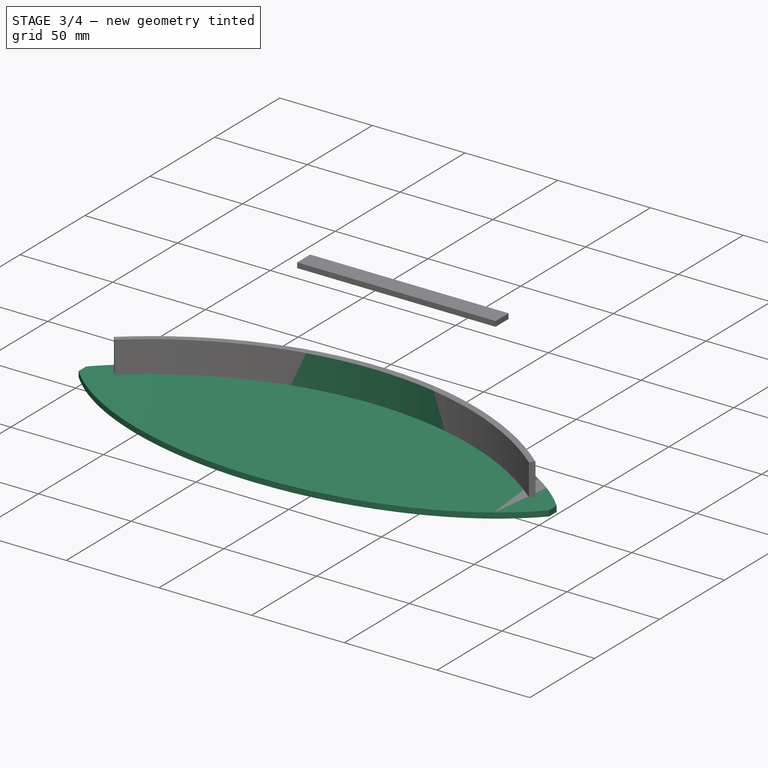
[diagram: stage 3 of 4 — iso view after this stage's code; geometry added in this stage tinted green]
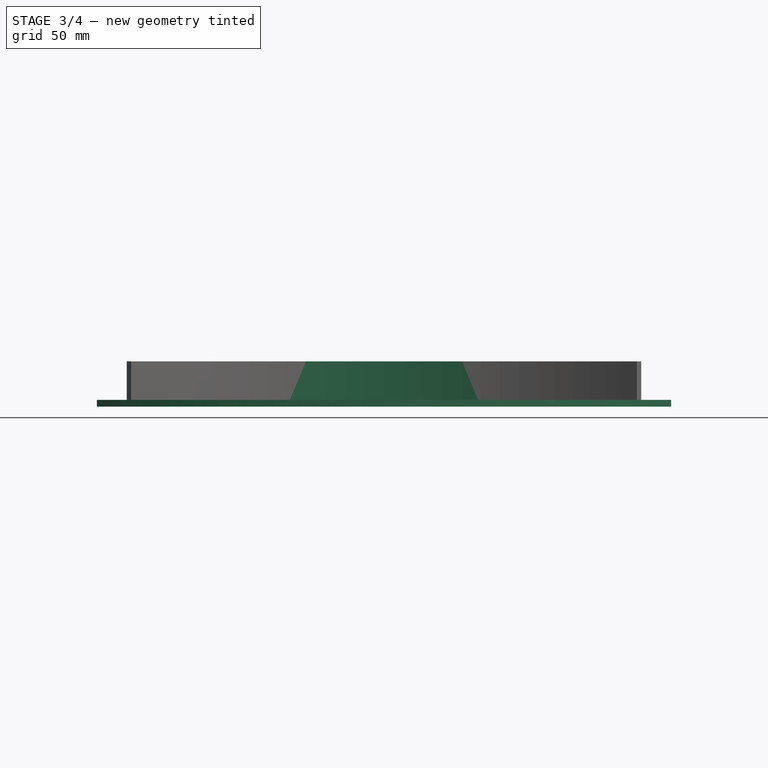
[diagram: stage 3 of 4 — front view after this stage's code; geometry added in this stage tinted green]
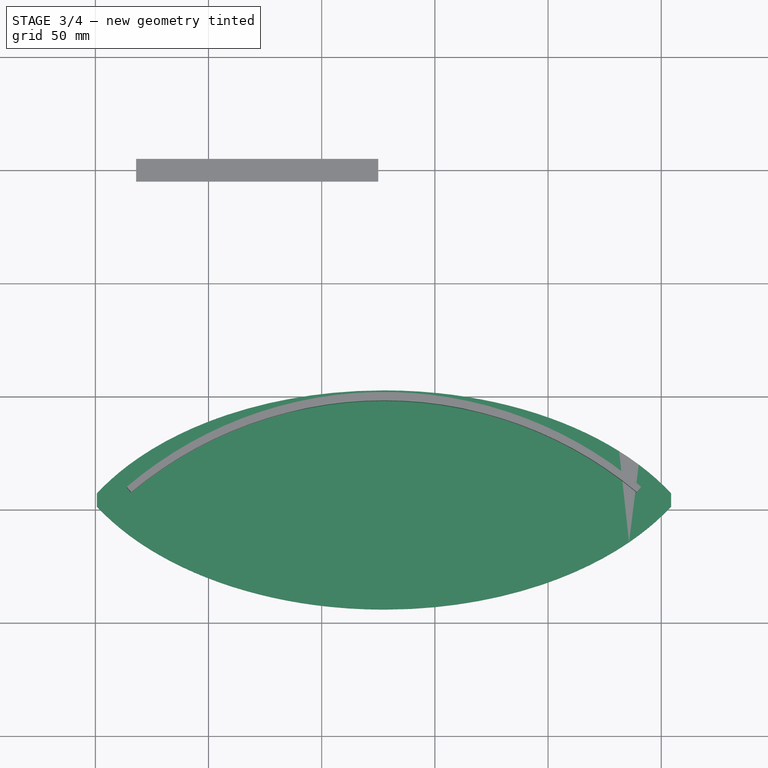
[diagram: stage 3 of 4 — top view after this stage's code; geometry added in this stage tinted green]
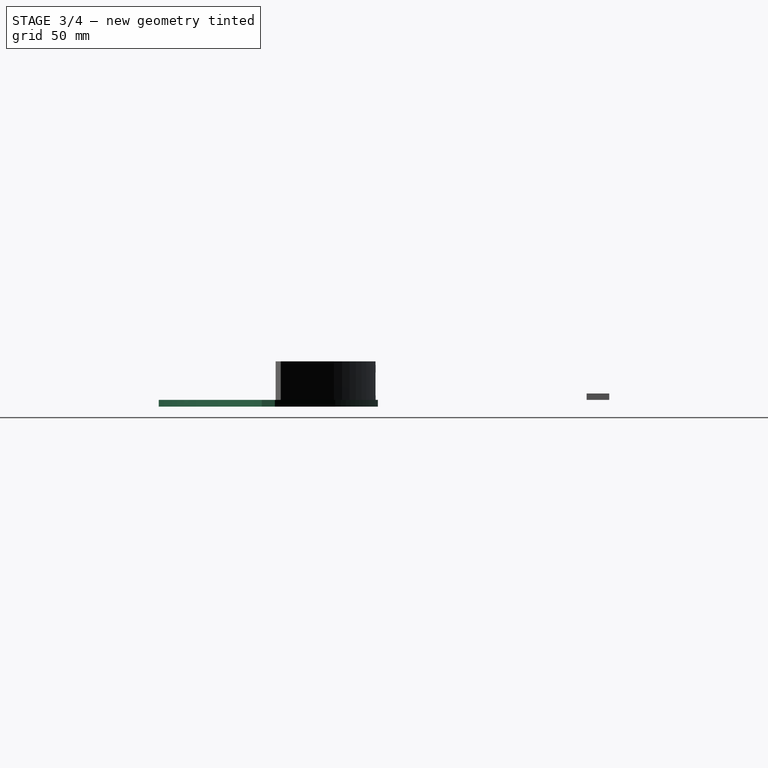
[diagram: stage 3 of 4 — right view after this stage's code; geometry added in this stage tinted green]
FEATURE [Sketcher::SketchObject] Sketch003
  sketch-geometry (6):
    g0: BSplineCurve PolesCount=3 KnotsCount=2 Degree=2 IsPeriodic=0
    g1: BSplineCurve PolesCount=3 KnotsCount=2 Degree=2 IsPeriodic=0
    g2: BSplineCurve PolesCount=3 KnotsCount=2 Degree=2 IsPeriodic=0
    g3: BSplineCurve PolesCount=3 KnotsCount=2 Degree=2 IsPeriodic=0
    g4: LineSegment StartX=0.646382 StartY=-142.768 StartZ=0 EndX=0.646382 EndY=-148.526 EndZ=0
    g5: LineSegment StartX=254.388 StartY=-142.768 StartZ=0 EndX=254.388 EndY=-148.526 EndZ=0
  constraints (10):
    c: Coincident(g0,g1)
    c: Coincident(g2,g3)
    c: Coincident(g4,g3)
    c: Coincident(g4,g1)
    c: Coincident(g5,g2)
    c: Coincident(g5,g0)
    c: Block(g3)
    c: Block(g2)
    c: Block(g0)
    c: Block(g1)
FEATURE [PartDesign::Pad] Pad
  Direction = (1,1,1)
  Length = 3
  Length2 = 100
  Profile = -> Sketch003
  Type = 0
FEATURE [Sketcher::SketchObject] Sketch028
  MapMode = 5
  Placement = pos=(0,0,3) rot=(0,0,1;0rad)
  Support = -> [Pad]
  sketch-geometry (40):
    g0: BSplineCurve PolesCount=2 KnotsCount=2 Degree=1 IsPeriodic=0
    g1: BSplineCurve PolesCount=2 KnotsCount=2 Degree=1 IsPeriodic=0
    g2: BSplineCurve PolesCount=2 KnotsCount=2 Degree=1 IsPeriodic=0
    g3: BSplineCurve PolesCount=2 KnotsCount=2 Degree=1 IsPeriodic=0
    g4: BSplineCurve PolesCount=2 KnotsCount=2 Degree=1 IsPeriodic=0
    g5: BSplineCurve PolesCount=2 KnotsCount=2 Degree=1 IsPeriodic=0
    g6: BSplineCurve PolesCount=2 KnotsCount=2 Degree=1 IsPeriodic=0
    g7: BSplineCurve PolesCount=2 KnotsCount=2 Degree=1 IsPeriodic=0
    g8: BSplineCurve PolesCount=3 KnotsCount=2 Degree=2 IsPeriodic=0
    g9: BSplineCurve PolesCount=3 KnotsCount=2 Degree=2 IsPeriodic=0
    g10: BSplineCurve PolesCount=3 KnotsCount=2 Degree=2 IsPeriodic=0
    g11: BSplineCurve PolesCount=3 KnotsCount=2 Degree=2 IsPeriodic=0
    g12: BSplineCurve PolesCount=3 KnotsCount=2 Degree=2 IsPeriodic=0
    g13: BSplineCurve PolesCount=3 KnotsCount=2 Degree=2 IsPeriodic=0
    g14: BSplineCurve PolesCount=3 KnotsCount=2 Degree=2 IsPeriodic=0
    g15: BSplineCurve PolesCount=3 KnotsCount=2 Degree=2 IsPeriodic=0
    g16: BSplineCurve PolesCount=3 KnotsCount=2 Degree=2 IsPeriodic=0
    g17: BSplineCurve PolesCount=3 KnotsCount=2 Degree=2 IsPeriodic=0
    g18: BSplineCurve PolesCount=3 KnotsCount=2 Degree=2 IsPeriodic=0
    g19: BSplineCurve PolesCount=3 KnotsCount=2 Degree=2 IsPeriodic=0
    g20: BSplineCurve PolesCount=3 KnotsCount=2 Degree=2 IsPeriodic=0
    g21: BSplineCurve PolesCount=3 KnotsCount=2 Degree=2 IsPeriodic=0
    g22: BSplineCurve PolesCount=3 KnotsCount=2 Degree=2 IsPeriodic=0
    g23: BSplineCurve PolesCount=3 KnotsCount=2 Degree=2 IsPeriodic=0
    g24: BSplineCurve PolesCount=3 KnotsCount=2 Degree=2 IsPeriodic=0
    g25: BSplineCurve PolesCount=3 KnotsCount=2 Degree=2 IsPeriodic=0
    g26: BSplineCurve PolesCount=3 KnotsCount=2 Degree=2 IsPeriodic=0
    g27: BSplineCurve PolesCount=3 KnotsCount=2 Degree=2 IsPeriodic=0
    g28: BSplineCurve PolesCount=3 KnotsCount=2 Degree=2 IsPeriodic=0
    g29: BSplineCurve PolesCount=3 KnotsCount=2 Degree=2 IsPeriodic=0
    g30: BSplineCurve PolesCount=3 KnotsCount=2 Degree=2 IsPeriodic=0
    g31: BSplineCurve PolesCount=3 KnotsCount=2 Degree=2 IsPeriodic=0
    g32: BSplineCurve PolesCount=3 KnotsCount=2 Degree=2 IsPeriodic=0
    g33: BSplineCurve PolesCount=3 KnotsCount=2 Degree=2 IsPeriodic=0
    g34: BSplineCurve PolesCount=3 KnotsCount=2 Degree=2 IsPeriodic=0
    g35: BSplineCurve PolesCount=3 KnotsCount=2 Degree=2 IsPeriodic=0
    g36: BSplineCurve PolesCount=3 KnotsCount=2 Degree=2 IsPeriodic=0
    g37: BSplineCurve PolesCount=3 KnotsCount=2 Degree=2 IsPeriodic=0
    g38: BSplineCurve PolesCount=3 KnotsCount=2 Degree=2 IsPeriodic=0
    g39: BSplineCurve PolesCount=3 KnotsCount=2 Degree=2 IsPeriodic=0
  constraints (80):
    c: Coincident(g0,g1)
    c: Coincident(g1,g2)
    c: Coincident(g2,g3)
    c: Coincident(g3,g0)
    c: Coincident(g4,g5)
    c: Coincident(g5,g6)
    c: Coincident(g6,g7)
    c: Coincident(g7,g4)
    c: Coincident(g8,g9)
    c: Coincident(g9,g10)
    c: Coincident(g10,g11)
    c: Coincident(g11,g8)
    c: Coincident(g12,g13)
    c: Coincident(g13,g14)
    c: Coincident(g14,g15)
    c: Coincident(g15,g12)
    c: Coincident(g16,g17)
    c: Coincident(g17,g18)
    c: Coincident(g18,g19)
    c: Coincident(g19,g16)
    c: Coincident(g20,g21)
    c: Coincident(g21,g22)
    c: Coincident(g22,g23)
    c: Coincident(g23,g20)
    c: Coincident(g24,g25)
    c: Coincident(g25,g26)
    c: Coincident(g26,g27)
    c: Coincident(g27,g24)
    c: Coincident(g28,g29)
    c: Coincident(g29,g30)
    c: Coincident(g30,g31)
    c: Coincident(g31,g28)
    c: Coincident(g32,g33)
    c: Coincident(g33,g34)
    c: Coincident(g34,g35)
    c: Coincident(g35,g32)
    c: Coincident(g36,g37)
    c: Coincident(g37,g38)
    c: Coincident(g38,g39)
    c: Coincident(g39,g36)
    c: Block(g19)
    c: Block(g18)
    c: Block(g17)
    c: Block(g16)
    c: Block(g32)
    c: Block(g33)
    c: Block(g34)
    c: Block(g35)
    c: Block(g39)
    c: Block(g36)
    c: Block(g37)
    c: Block(g38)
    c: Block(g23)
    c: Block(g22)
    c: Block(g21)
    c: Block(g20)
    c: Block(g14)
    c: Block(g15)
    c: Block(g12)
    c: Block(g13)
    c: Block(g9)
    c: Block(g10)
    c: Block(g11)
    c: Block(g8)
    c: Block(g25)
    c: Block(g24)
    c: Block(g27)
    c: Block(g26)
    c: Block(g29)
    c: Block(g28)
    c: Block(g31)
    c: Block(g30)
    c: Block(g7)
    c: Block(g4)
    c: Block(g5)
    c: Block(g6)
    c: Block(g2)
    c: Block(g3)
    c: Block(g0)
    c: Block(g1)
FEATURE [PartDesign::Pocket] Pocket
  BaseFeature = -> Pad
  Length = 5
  Length2 = 100
  Profile = -> Sketch028
  Type = 1
FEATURE [PartDesign::Body] Body  label="base"
  Group = -> [Sketch003,Pad,Sketch028,Pocket]
  Origin = -> Origin
  Tip = -> Pocket
FEATURE [Sketcher::SketchObject] Sketch029
  sketch-geometry (6):
    g0: BSplineCurve PolesCount=3 KnotsCount=2 Degree=2 IsPeriodic=0
    g1: BSplineCurve PolesCount=3 KnotsCount=2 Degree=2 IsPeriodic=0
    g2: BSplineCurve PolesCount=3 KnotsCount=2 Degree=2 IsPeriodic=0
    g3: BSplineCurve PolesCount=3 KnotsCount=2 Degree=2 IsPeriodic=0
    g4: LineSegment StartX=0.646382 StartY=-142.768 StartZ=0 EndX=0.646382 EndY=-148.526 EndZ=0
    g5: LineSegment StartX=254.388 StartY=-142.768 StartZ=0 EndX=254.388 EndY=-148.526 EndZ=0
  constraints (10):
    c: Coincident(g0,g1)
    c: Coincident(g2,g3)
    c: Coincident(g4,g3)
    c: Coincident(g4,g1)
    c: Coincident(g5,g2)
    c: Coincident(g5,g0)
    c: Block(g3)
    c: Block(g2)
    c: Block(g0)
    c: Block(g1)
FEATURE [PartDesign::Pad] Pad001
  Direction = (1,1,1)
  Length = 3
  Length2 = 100
  Profile = -> Sketch029
  Type = 0
FEATURE [PartDesign::ShapeBinder] ShapeBinder001
  Support = -> [Pocket]
  TraceSupport = false
FEATURE [Sketcher::SketchObject] Sketch042
  ExternalGeometry = -> [ShapeBinder001]
  MapMode = 5
  Support = -> [XY_Plane006]
  sketch-geometry (7):
    g0: ArcOfCircle CenterX=127.517 CenterY=-273.227 CenterZ=0 NormalX=0 NormalY=0 NormalZ=1 AngleXU=0 Radius=175 StartAngle=0.863938 EndAngle=2.27765
    g1: LineSegment [constr] StartX=127.517 StartY=-97.2269 StartZ=0 EndX=127.517 EndY=-273.227 EndZ=0
    g2: LineSegment [constr] StartX=127.517 StartY=-273.227 StartZ=0 EndX=239.222 EndY=-142.437 EndZ=0
    g3: LineSegment [constr] StartX=127.517 StartY=-273.227 StartZ=0 EndX=15.8124 EndY=-142.437 EndZ=0
    g4: LineSegment StartX=13.864 StartY=-140.156 StartZ=0 EndX=15.8124 EndY=-142.437 EndZ=0
    g5: LineSegment StartX=241.171 StartY=-140.156 StartZ=0 EndX=239.222 EndY=-142.437 EndZ=0
    g6: ArcOfCircle CenterX=127.517 CenterY=-276.227 CenterZ=0 NormalX=0 NormalY=0 NormalZ=1 AngleXU=0 Radius=174.292 StartAngle=0.875117 EndAngle=2.26648
  constraints (20):
    c: DistanceX(g-4,g0) = 0
    c: Coincident(g1,g-4)
    c: Coincident(g1,g0)
    c: Symmetric(g0,g0,g1)
    c: Radius(g0) = 175
    c: Angle(g0) = 1.41372
    c: Coincident(g2,g0)
    c: Coincident(g3,g0)
    c: Coincident(g4,g0)
    c: Coincident(g5,g0)
    c: Parallel(g4,g3)
    c: Parallel(g5,g2)
    c: Distance(g4) = 3
    c: DistanceY(g0,g1) = 176
    c: Coincident(g3,g4)
    c: Coincident(g2,g5)
    c: Equal(g5,g4)
    c: Coincident(g6,g4)
    c: Coincident(g6,g5)
    c: DistanceY(g6,g0) = 3
FEATURE [PartDesign::Pad] Pad003
  Direction = (1,1,1)
  Length = 20
  Length2 = 100
  Profile = -> Sketch042
  Type = 0
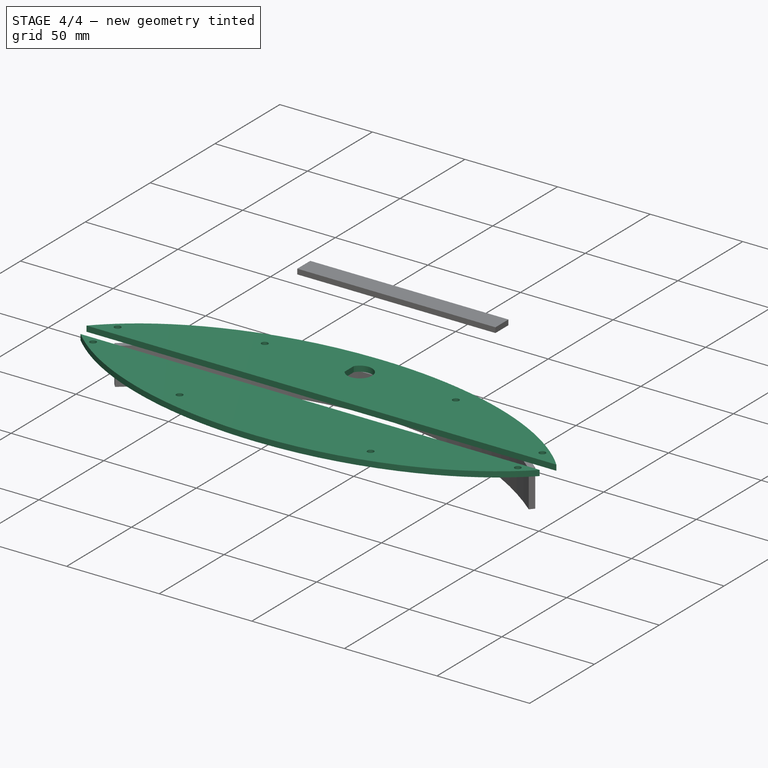
[diagram: stage 4 of 4 — iso view after this stage's code; geometry added in this stage tinted green]
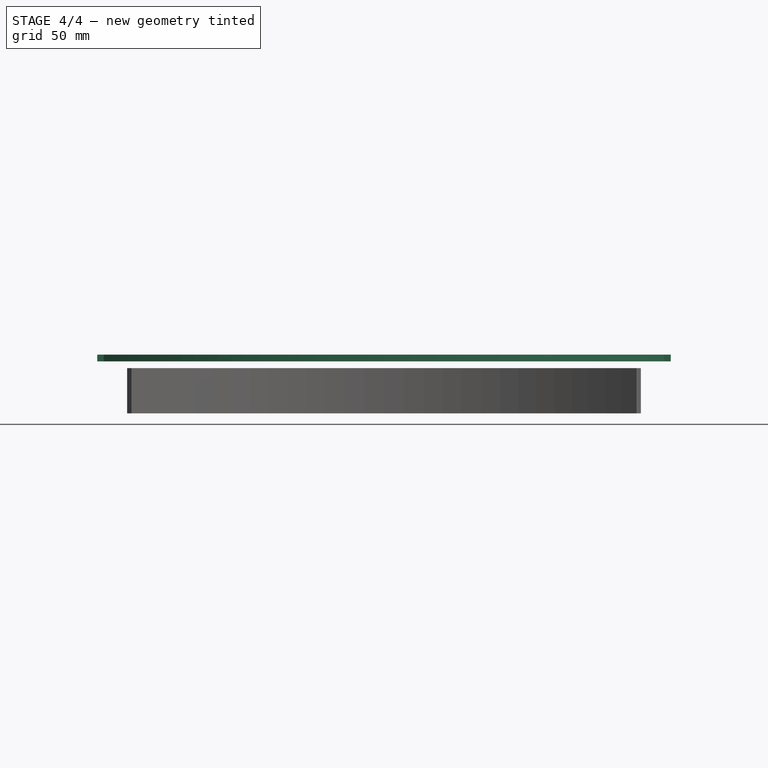
[diagram: stage 4 of 4 — front view after this stage's code; geometry added in this stage tinted green]
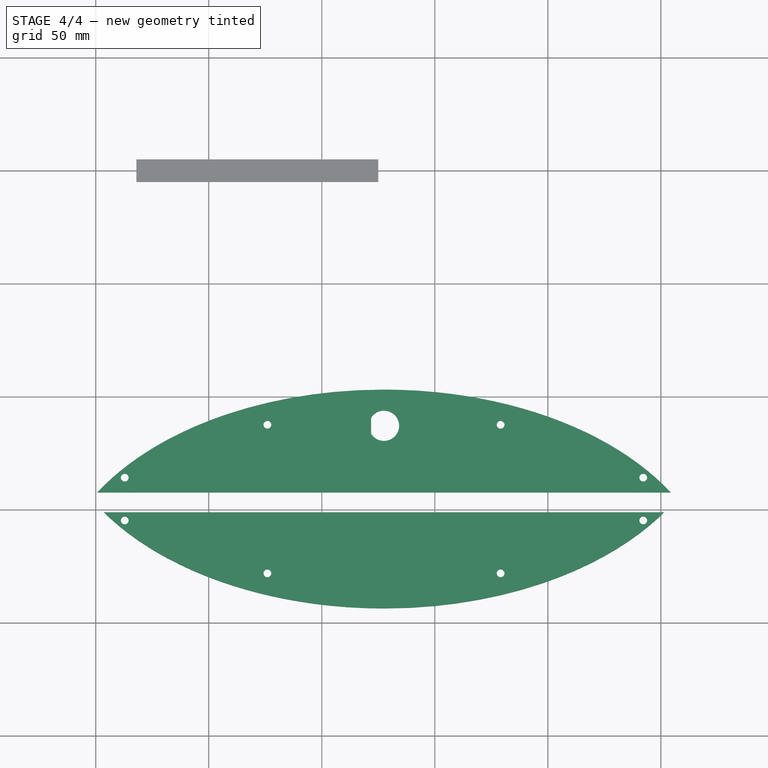
[diagram: stage 4 of 4 — top view after this stage's code; geometry added in this stage tinted green]
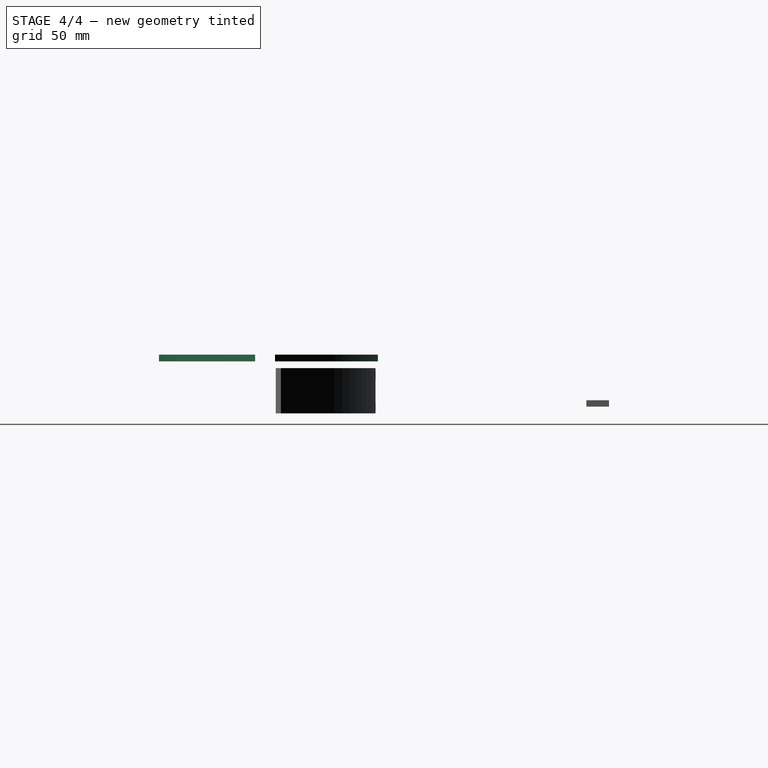
[diagram: stage 4 of 4 — right view after this stage's code; geometry added in this stage tinted green]
FEATURE [Sketcher::SketchObject] Sketch030
  sketch-geometry (4):
    g0: BSplineCurve PolesCount=3 KnotsCount=2 Degree=2 IsPeriodic=0
    g1: BSplineCurve PolesCount=3 KnotsCount=2 Degree=2 IsPeriodic=0
    g2: BSplineCurve PolesCount=3 KnotsCount=2 Degree=2 IsPeriodic=0
    g3: BSplineCurve PolesCount=3 KnotsCount=2 Degree=2 IsPeriodic=0
  constraints (4):
    c: Coincident(g0,g1)
    c: Coincident(g1,g2)
    c: Coincident(g2,g3)
    c: Coincident(g3,g0)
FEATURE [Sketcher::SketchObject] Sketch031
  sketch-geometry (4):
    g0: BSplineCurve PolesCount=3 KnotsCount=2 Degree=2 IsPeriodic=0
    g1: BSplineCurve PolesCount=3 KnotsCount=2 Degree=2 IsPeriodic=0
    g2: BSplineCurve PolesCount=3 KnotsCount=2 Degree=2 IsPeriodic=0
    g3: BSplineCurve PolesCount=3 KnotsCount=2 Degree=2 IsPeriodic=0
  constraints (4):
    c: Coincident(g0,g1)
    c: Coincident(g1,g2)
    c: Coincident(g2,g3)
    c: Coincident(g3,g0)
FEATURE [Sketcher::SketchObject] Sketch032
  sketch-geometry (4):
    g0: BSplineCurve PolesCount=3 KnotsCount=2 Degree=2 IsPeriodic=0
    g1: BSplineCurve PolesCount=3 KnotsCount=2 Degree=2 IsPeriodic=0
    g2: BSplineCurve PolesCount=3 KnotsCount=2 Degree=2 IsPeriodic=0
    g3: BSplineCurve PolesCount=3 KnotsCount=2 Degree=2 IsPeriodic=0
  constraints (4):
    c: Coincident(g0,g1)
    c: Coincident(g1,g2)
    c: Coincident(g2,g3)
    c: Coincident(g3,g0)
FEATURE [Sketcher::SketchObject] Sketch033
  sketch-geometry (4):
    g0: BSplineCurve PolesCount=3 KnotsCount=2 Degree=2 IsPeriodic=0
    g1: BSplineCurve PolesCount=3 KnotsCount=2 Degree=2 IsPeriodic=0
    g2: BSplineCurve PolesCount=3 KnotsCount=2 Degree=2 IsPeriodic=0
    g3: BSplineCurve PolesCount=3 KnotsCount=2 Degree=2 IsPeriodic=0
  constraints (4):
    c: Coincident(g0,g1)
    c: Coincident(g1,g2)
    c: Coincident(g2,g3)
    c: Coincident(g3,g0)
FEATURE [Sketcher::SketchObject] Sketch034
  sketch-geometry (4):
    g0: BSplineCurve PolesCount=3 KnotsCount=2 Degree=2 IsPeriodic=0
    g1: BSplineCurve PolesCount=3 KnotsCount=2 Degree=2 IsPeriodic=0
    g2: BSplineCurve PolesCount=3 KnotsCount=2 Degree=2 IsPeriodic=0
    g3: BSplineCurve PolesCount=3 KnotsCount=2 Degree=2 IsPeriodic=0
  constraints (4):
    c: Coincident(g0,g1)
    c: Coincident(g1,g2)
    c: Coincident(g2,g3)
    c: Coincident(g3,g0)
FEATURE [Sketcher::SketchObject] Sketch035
  sketch-geometry (4):
    g0: BSplineCurve PolesCount=2 KnotsCount=2 Degree=1 IsPeriodic=0
    g1: BSplineCurve PolesCount=2 KnotsCount=2 Degree=1 IsPeriodic=0
    g2: BSplineCurve PolesCount=2 KnotsCount=2 Degree=1 IsPeriodic=0
    g3: BSplineCurve PolesCount=2 KnotsCount=2 Degree=1 IsPeriodic=0
  constraints (4):
    c: Coincident(g0,g1)
    c: Coincident(g1,g2)
    c: Coincident(g2,g3)
    c: Coincident(g3,g0)
FEATURE [Sketcher::SketchObject] Sketch036
  sketch-geometry (4):
    g0: BSplineCurve PolesCount=3 KnotsCount=2 Degree=2 IsPeriodic=0
    g1: BSplineCurve PolesCount=3 KnotsCount=2 Degree=2 IsPeriodic=0
    g2: BSplineCurve PolesCount=3 KnotsCount=2 Degree=2 IsPeriodic=0
    g3: BSplineCurve PolesCount=3 KnotsCount=2 Degree=2 IsPeriodic=0
  constraints (4):
    c: Coincident(g0,g1)
    c: Coincident(g1,g2)
    c: Coincident(g2,g3)
    c: Coincident(g3,g0)
FEATURE [Sketcher::SketchObject] Sketch037
  sketch-geometry (4):
    g0: BSplineCurve PolesCount=2 KnotsCount=2 Degree=1 IsPeriodic=0
    g1: BSplineCurve PolesCount=2 KnotsCount=2 Degree=1 IsPeriodic=0
    g2: BSplineCurve PolesCount=2 KnotsCount=2 Degree=1 IsPeriodic=0
    g3: BSplineCurve PolesCount=2 KnotsCount=2 Degree=1 IsPeriodic=0
  constraints (4):
    c: Coincident(g0,g1)
    c: Coincident(g1,g2)
    c: Coincident(g2,g3)
    c: Coincident(g3,g0)
FEATURE [Sketcher::SketchObject] Sketch038
  sketch-geometry (4):
    g0: BSplineCurve PolesCount=3 KnotsCount=2 Degree=2 IsPeriodic=0
    g1: BSplineCurve PolesCount=3 KnotsCount=2 Degree=2 IsPeriodic=0
    g2: BSplineCurve PolesCount=3 KnotsCount=2 Degree=2 IsPeriodic=0
    g3: BSplineCurve PolesCount=3 KnotsCount=2 Degree=2 IsPeriodic=0
  constraints (4):
    c: Coincident(g0,g1)
    c: Coincident(g1,g2)
    c: Coincident(g2,g3)
    c: Coincident(g3,g0)
FEATURE [Sketcher::SketchObject] Sketch039
  sketch-geometry (4):
    g0: BSplineCurve PolesCount=3 KnotsCount=2 Degree=2 IsPeriodic=0
    g1: BSplineCurve PolesCount=3 KnotsCount=2 Degree=2 IsPeriodic=0
    g2: BSplineCurve PolesCount=3 KnotsCount=2 Degree=2 IsPeriodic=0
    g3: BSplineCurve PolesCount=3 KnotsCount=2 Degree=2 IsPeriodic=0
  constraints (4):
    c: Coincident(g0,g1)
    c: Coincident(g1,g2)
    c: Coincident(g2,g3)
    c: Coincident(g3,g0)
FEATURE [Sketcher::SketchObject] Sketch040
  ExternalGeometry = -> [Pad001]
  MapMode = 5
  Placement = pos=(0,0,3) rot=(0,0,1;0rad)
  Support = -> [Pad001]
  sketch-geometry (42):
    g0: BSplineCurve [constr] PolesCount=2 KnotsCount=2 Degree=1 IsPeriodic=0
    g1: BSplineCurve [constr] PolesCount=2 KnotsCount=2 Degree=1 IsPeriodic=0
    g2: BSplineCurve [constr] PolesCount=2 KnotsCount=2 Degree=1 IsPeriodic=0
    g3: BSplineCurve [constr] PolesCount=2 KnotsCount=2 Degree=1 IsPeriodic=0
    g4: BSplineCurve [constr] PolesCount=2 KnotsCount=2 Degree=1 IsPeriodic=0
    g5: BSplineCurve [constr] PolesCount=2 KnotsCount=2 Degree=1 IsPeriodic=0
    g6: BSplineCurve [constr] PolesCount=2 KnotsCount=2 Degree=1 IsPeriodic=0
    g7: BSplineCurve [constr] PolesCount=2 KnotsCount=2 Degree=1 IsPeriodic=0
    g8: BSplineCurve PolesCount=3 KnotsCount=2 Degree=2 IsPeriodic=0
    g9: BSplineCurve PolesCount=3 KnotsCount=2 Degree=2 IsPeriodic=0
    g10: BSplineCurve PolesCount=3 KnotsCount=2 Degree=2 IsPeriodic=0
    g11: BSplineCurve PolesCount=3 KnotsCount=2 Degree=2 IsPeriodic=0
    g12: BSplineCurve PolesCount=3 KnotsCount=2 Degree=2 IsPeriodic=0
    g13: BSplineCurve PolesCount=3 KnotsCount=2 Degree=2 IsPeriodic=0
    g14: BSplineCurve PolesCount=3 KnotsCount=2 Degree=2 IsPeriodic=0
    g15: BSplineCurve PolesCount=3 KnotsCount=2 Degree=2 IsPeriodic=0
    g16: BSplineCurve PolesCount=3 KnotsCount=2 Degree=2 IsPeriodic=0
    g17: BSplineCurve PolesCount=3 KnotsCount=2 Degree=2 IsPeriodic=0
    g18: BSplineCurve PolesCount=3 KnotsCount=2 Degree=2 IsPeriodic=0
    g19: BSplineCurve PolesCount=3 KnotsCount=2 Degree=2 IsPeriodic=0
    g20: BSplineCurve PolesCount=3 KnotsCount=2 Degree=2 IsPeriodic=0
    g21: BSplineCurve PolesCount=3 KnotsCount=2 Degree=2 IsPeriodic=0
    g22: BSplineCurve PolesCount=3 KnotsCount=2 Degree=2 IsPeriodic=0
    g23: BSplineCurve PolesCount=3 KnotsCount=2 Degree=2 IsPeriodic=0
    g24: BSplineCurve PolesCount=3 KnotsCount=2 Degree=2 IsPeriodic=0
    g25: BSplineCurve PolesCount=3 KnotsCount=2 Degree=2 IsPeriodic=0
    g26: BSplineCurve PolesCount=3 KnotsCount=2 Degree=2 IsPeriodic=0
    g27: BSplineCurve PolesCount=3 KnotsCount=2 Degree=2 IsPeriodic=0
    g28: BSplineCurve PolesCount=3 KnotsCount=2 Degree=2 IsPeriodic=0
    g29: BSplineCurve PolesCount=3 KnotsCount=2 Degree=2 IsPeriodic=0
    g30: BSplineCurve PolesCount=3 KnotsCount=2 Degree=2 IsPeriodic=0
    g31: BSplineCurve PolesCount=3 KnotsCount=2 Degree=2 IsPeriodic=0
    g32: BSplineCurve PolesCount=3 KnotsCount=2 Degree=2 IsPeriodic=0
    g33: BSplineCurve PolesCount=3 KnotsCount=2 Degree=2 IsPeriodic=0
    g34: BSplineCurve PolesCount=3 KnotsCount=2 Degree=2 IsPeriodic=0
    g35: BSplineCurve PolesCount=3 KnotsCount=2 Degree=2 IsPeriodic=0
    g36: BSplineCurve PolesCount=3 KnotsCount=2 Degree=2 IsPeriodic=0
    g37: BSplineCurve PolesCount=3 KnotsCount=2 Degree=2 IsPeriodic=0
    g38: BSplineCurve PolesCount=3 KnotsCount=2 Degree=2 IsPeriodic=0
    g39: BSplineCurve PolesCount=3 KnotsCount=2 Degree=2 IsPeriodic=0
    g40: ArcOfCircle CenterX=127.517 CenterY=-113.227 CenterZ=0 NormalX=0 NormalY=0 NormalZ=1 AngleXU=0 Radius=6.7 StartAngle=3.69124 EndAngle=8.87513
    g41: LineSegment StartX=121.804 StartY=-109.727 StartZ=0 EndX=121.804 EndY=-116.727 EndZ=0
  constraints (87):
    c: Coincident(g0,g1)
    c: Coincident(g1,g2)
    c: Coincident(g2,g3)
    c: Coincident(g3,g0)
    c: Coincident(g4,g5)
    c: Coincident(g5,g6)
    c: Coincident(g6,g7)
    c: Coincident(g7,g4)
    c: Coincident(g8,g9)
    c: Coincident(g9,g10)
    c: Coincident(g10,g11)
    c: Coincident(g11,g8)
    c: Coincident(g12,g13)
    c: Coincident(g13,g14)
    c: Coincident(g14,g15)
    c: Coincident(g15,g12)
    c: Coincident(g16,g17)
    c: Coincident(g17,g18)
    c: Coincident(g18,g19)
    c: Coincident(g19,g16)
    c: Coincident(g20,g21)
    c: Coincident(g21,g22)
    c: Coincident(g22,g23)
    c: Coincident(g23,g20)
    c: Coincident(g24,g25)
    c: Coincident(g25,g26)
    c: Coincident(g26,g27)
    c: Coincident(g27,g24)
    c: Coincident(g28,g29)
    c: Coincident(g29,g30)
    c: Coincident(g30,g31)
    c: Coincident(g31,g28)
    c: Coincident(g32,g33)
    c: Coincident(g33,g34)
    c: Coincident(g34,g35)
    c: Coincident(g35,g32)
    c: Coincident(g36,g37)
    c: Coincident(g37,g38)
    c: Coincident(g38,g39)
    c: Coincident(g39,g36)
    c: Block(g19)
    c: Block(g18)
    c: Block(g17)
    c: Block(g16)
    c: Block(g32)
    c: Block(g33)
    c: Block(g34)
    c: Block(g35)
    c: Block(g39)
    c: Block(g36)
    c: Block(g37)
    c: Block(g38)
    c: Block(g23)
    c: Block(g22)
    c: Block(g21)
    c: Block(g20)
    c: Block(g14)
    c: Block(g15)
    c: Block(g12)
    c: Block(g13)
    c: Block(g9)
    c: Block(g10)
    c: Block(g11)
    c: Block(g8)
    c: Block(g25)
    c: Block(g24)
    c: Block(g27)
    c: Block(g26)
    c: Block(g29)
    c: Block(g28)
    c: Block(g31)
    c: Block(g30)
    c: Block(g7)
    c: Block(g4)
    c: Block(g5)
    c: Block(g6)
    c: Block(g2)
    c: Block(g3)
    c: Block(g0)
    c: Block(g1)
    c: DistanceY(g40,g-5) = 16
    c: DistanceX(g40,g-5) = 0
    c: Vertical(g41)
    c: Radius(g40) = 6.7
    c: Coincident(g40,g41)
    c: Coincident(g40,g41)
    c: DistanceY(g41,g41) = 7
FEATURE [PartDesign::Pocket] Pocket001
  BaseFeature = -> Pad001
  Length = 5
  Length2 = 100
  Profile = -> Sketch040
  Type = 1
FEATURE [PartDesign::Body] Body004  label="base001"
  Group = -> [Sketch029,Pad001,Sketch035,Sketch037,Sketch031,Sketch038,Sketch032,Sketch030,Sketch039,Sketch033,Sketch036,Sketch034,Sketch040,Pocket001]
  Origin = -> Origin004
  Placement = pos=(0,0,23) rot=(0,0,1;0rad)
  Tip = -> Pocket001
FEATURE [PartDesign::ShapeBinder] ShapeBinder
  Support = -> [Pocket001]
  TraceSupport = false
FEATURE [Sketcher::SketchObject] Sketch041
  ExternalGeometry = -> [ShapeBinder]
  MapMode = 5
  Placement = pos=(0,0,3) rot=(0,0,1;0rad)
  Support = -> [ShapeBinder]
  sketch-geometry (4):
    g0: LineSegment StartX=-0.353618 StartY=-142.768 StartZ=0 EndX=255.388 EndY=-142.768 EndZ=0
    g1: LineSegment StartX=255.388 StartY=-142.768 StartZ=0 EndX=255.388 EndY=-151.518 EndZ=0
    g2: LineSegment StartX=255.388 StartY=-151.518 StartZ=0 EndX=-0.353618 EndY=-151.518 EndZ=0
    g3: LineSegment StartX=-0.353618 StartY=-151.518 StartZ=0 EndX=-0.353618 EndY=-142.768 EndZ=0
  constraints (12):
    c: Coincident(g0,g1)
    c: Coincident(g1,g2)
    c: Coincident(g2,g3)
    c: Coincident(g3,g0)
    c: Horizontal(g0)
    c: Horizontal(g2)
    c: Vertical(g1)
    c: Vertical(g3)
    c: DistanceY(g1,g1) = 8.75
    c: PointOnObject(g-4,g0)
    c: DistanceX(g0,g-4) = 1
    c: DistanceX(g-3,g0) = 1
FEATURE [PartDesign::Pad] Pad002
  Direction = (1,1,1)
  Length = 25
  Length2 = 100
  Profile = -> Sketch041
  Type = 0
FEATURE [PartDesign::Body] Body005
  Group = -> [ShapeBinder,Sketch041,Pad002]
  Origin = -> Origin005
  Tip = -> Pad002
FEATURE [Part::Cut] Cut  label="top"
  Base = -> Body004
  Tool = -> Body005
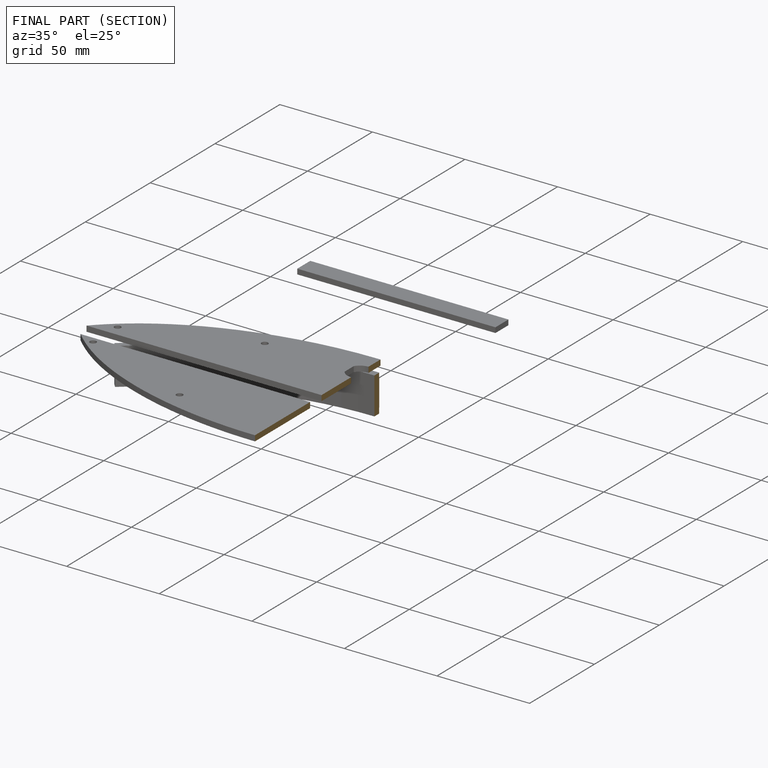
[diagram: finished part — half-section view (interior)]
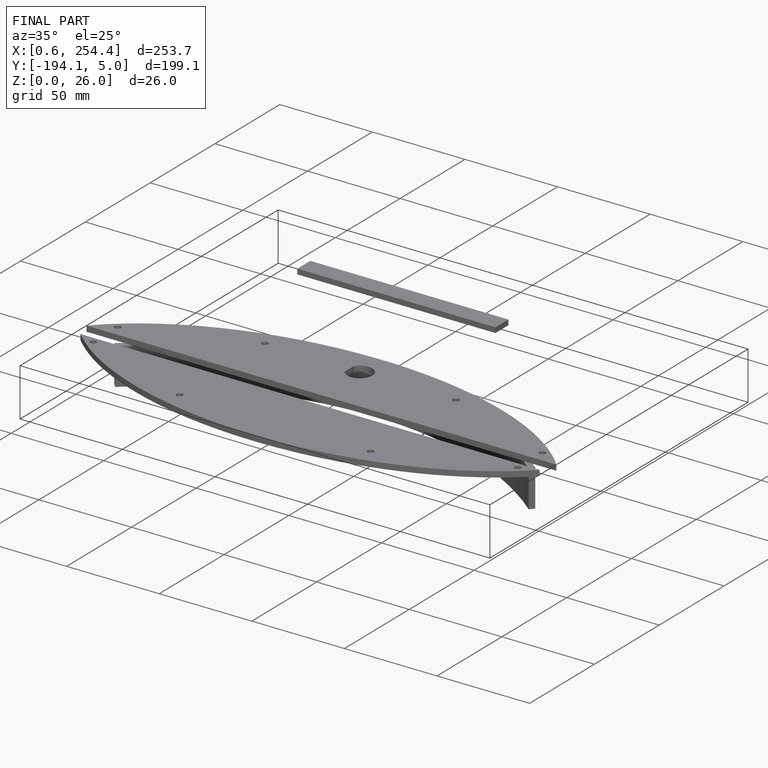
[diagram: finished part — iso view with bounding-box wireframe]
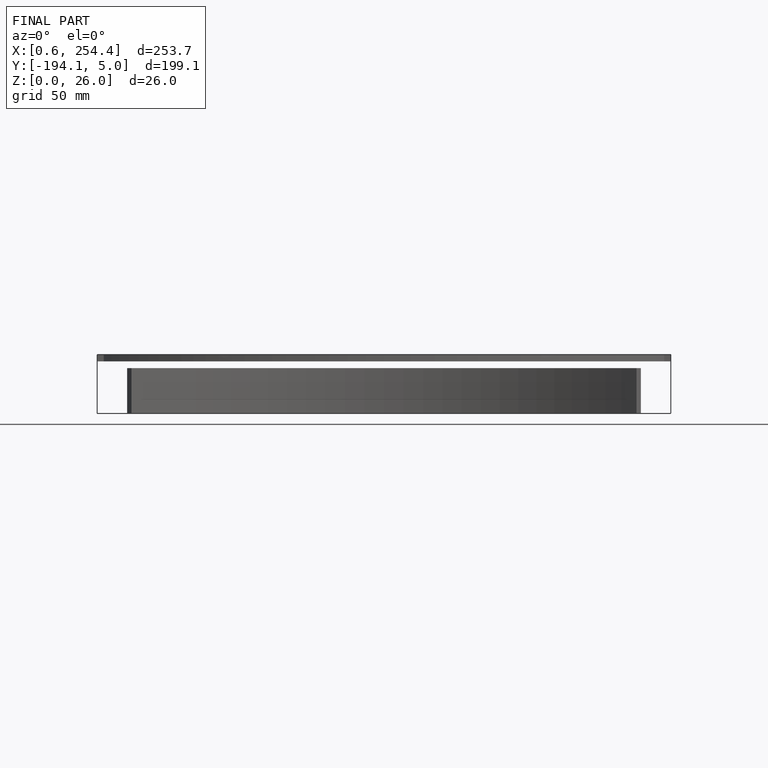
[diagram: finished part — front view with bounding-box wireframe]
